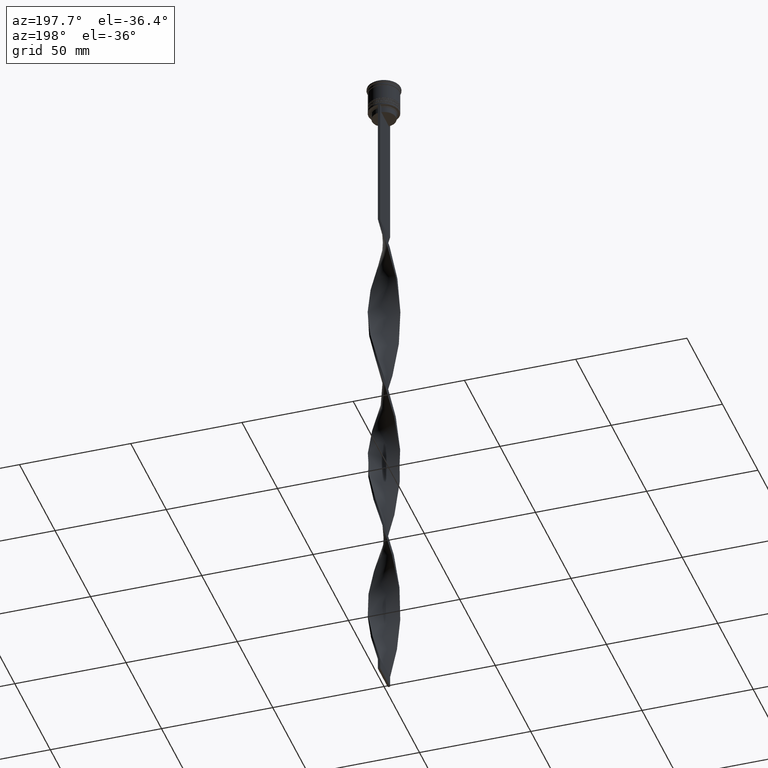
[diagram: clean part render]
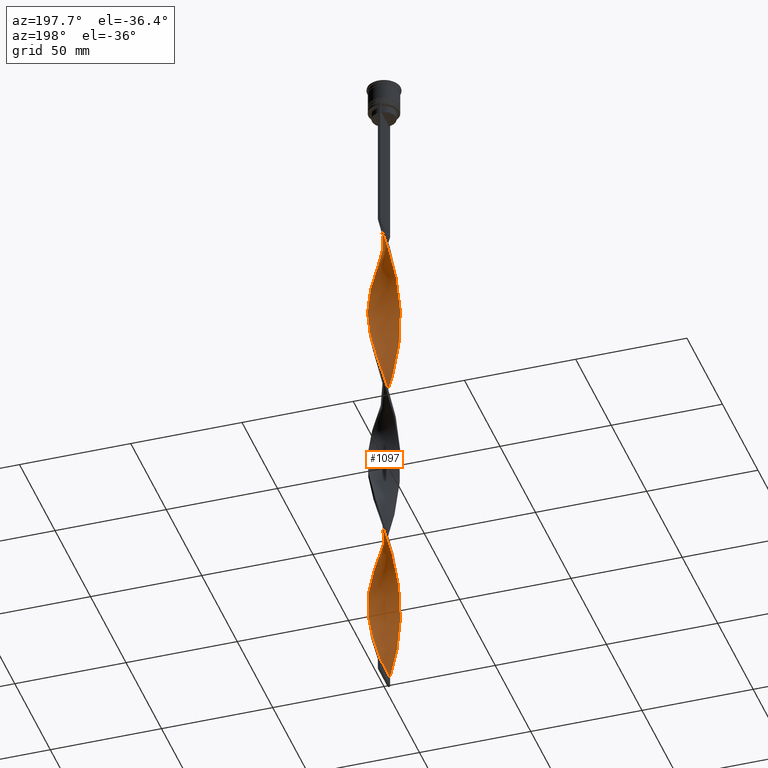
[diagram: same view with one face highlighted and labeled with its STEP entity id]
A machine part, auxiliary view. The second image highlights one B-rep face of the part: STEP entity #1097.
In plain terms, the highlighted face is a freeform B-spline surface patch.
Its self-contained STEP definition (entity closure, byte-faithful):
#17 = CARTESIAN_POINT ( 'NONE',  ( -5.724879761844407611, -4.096437986383642205, -204.1500000000000341 ) ) ;
#40 = CARTESIAN_POINT ( 'NONE',  ( -0.6011970849840476694, 6.992035616686082200, -233.4000000000000057 ) ) ;
#41 = CARTESIAN_POINT ( 'NONE',  ( 6.679087842547245302, -2.223699182758344772, -258.7500000000001137 ) ) ;
#44 = CARTESIAN_POINT ( 'NONE',  ( 1.151482222195765237, -6.944720379959854029, -157.3499999999999943 ) ) ;
#49 = CARTESIAN_POINT ( 'NONE',  ( -4.941572540085927834, -5.013572907112386901, -133.9500000000000455 ) ) ;
#58 = CARTESIAN_POINT ( 'NONE',  ( -5.957011586770866174, 3.709988268859837568, -174.9000000000000057 ) ) ;
#62 = CARTESIAN_POINT ( 'NONE',  ( -7.000000000000002665, 0.5000000000000004441, -268.4999999999999432 ) ) ;
#63 = CARTESIAN_POINT ( 'NONE',  ( 3.623436760271010026, -6.010050419448799808, -241.1999999999999886 ) ) ;
#64 = CARTESIAN_POINT ( 'NONE',  ( 1.687590702477054894, -6.811904111253552330, -159.3000000000000114 ) ) ;
#73 = CARTESIAN_POINT ( 'NONE',  ( -6.295221077053191117, -3.150435534158376960, -200.2500000000000000 ) ) ;
#76 = CARTESIAN_POINT ( 'NONE',  ( -2.126858903386042332, -6.710553156704010647, -301.6500000000000341 ) ) ;
#77 = CARTESIAN_POINT ( 'NONE',  ( -1.687590702477056226, -6.811904111253546112, -221.7000000000000171 ) ) ;
#79 = CARTESIAN_POINT ( 'NONE',  ( 3.241161289406943258, -6.248993995829452253, -165.1500000000000341 ) ) ;
#89 = LINE ( 'NONE', #2927, #737 ) ;
#93 = CARTESIAN_POINT ( 'NONE',  ( -5.724879761844406723, -4.096437986383641316, -204.1500000000000341 ) ) ;
#96 = CARTESIAN_POINT ( 'NONE',  ( 2.126858903386040112, -6.710553156704005318, -79.35000000000002274 ) ) ;
#97 = CARTESIAN_POINT ( 'NONE',  ( -2.638647218772207204, 6.502887116878599549, -159.3000000000000114 ) ) ;
#104 = CARTESIAN_POINT ( 'NONE',  ( 1.687590702477054894, -6.811904111253552330, -159.3000000000000114 ) ) ;
#114 = CARTESIAN_POINT ( 'NONE',  ( -0.4999999999999996669, 2.333333333333331261, -307.5000000000000000 ) ) ;
#118 = CARTESIAN_POINT ( 'NONE',  ( 2.732430236082643127, 6.464040919188344780, -295.8000000000000114 ) ) ;
#122 = CARTESIAN_POINT ( 'NONE',  ( -3.241161289406943702, 6.248993995829452253, -87.15000000000001990 ) ) ;
#133 = CARTESIAN_POINT ( 'NONE',  ( 5.303300858899104853, -4.596194077712557835, -93.00000000000001421 ) ) ;
#136 = CARTESIAN_POINT ( 'NONE',  ( 1.050911947772334099, 6.960649146587694069, -227.5500000000000114 ) ) ;
#138 = CARTESIAN_POINT ( 'NONE',  ( 4.596194077712559611, -5.303300858899109294, -170.9999999999999716 ) ) ;
#146 = CARTESIAN_POINT ( 'NONE',  ( 3.709988268859837568, 5.957011586770866174, -135.9000000000000341 ) ) ;
#150 = CARTESIAN_POINT ( 'NONE',  ( -0.4999999999999991673, 6.999999999999997335, -307.5000000000000000 ) ) ;
#170 = DIRECTION ( 'NONE',  ( 0.000000000000000000, 1.000000000000000000, 0.000000000000000000 ) ) ;
#175 = CARTESIAN_POINT ( 'NONE',  ( 6.502887116878599549, 2.638647218772207204, -276.3000000000000114 ) ) ;
#177 = CARTESIAN_POINT ( 'NONE',  ( -0.6011970849840476694, 6.992035616686082200, -233.4000000000000057 ) ) ;
#190 = CARTESIAN_POINT ( 'NONE',  ( 0.6011970849840476694, 6.992035616686076871, -303.5999999999999659 ) ) ;
#192 = CARTESIAN_POINT ( 'NONE',  ( 4.096437986383643981, -5.724879761844404946, -243.1500000000000057 ) ) ;
#198 = CARTESIAN_POINT ( 'NONE',  ( -4.941572540085927834, -5.013572907112386901, -289.9500000000001023 ) ) ;
#210 = CARTESIAN_POINT ( 'NONE',  ( -0.4999999999999991673, 6.999999999999997335, -307.5000000000000000 ) ) ;
#213 = CARTESIAN_POINT ( 'NONE',  ( -0.6011970849840483355, -6.992035616686076871, -225.5999999999999943 ) ) ;
#216 = CARTESIAN_POINT ( 'NONE',  ( -1.588885425579183774, 6.835601151645846585, -155.4000000000000057 ) ) ;
#219 = CARTESIAN_POINT ( 'NONE',  ( -3.150435534158378736, -6.295221077053198222, -297.7499999999999432 ) ) ;
#242 = CARTESIAN_POINT ( 'NONE',  ( 5.665029177712287201, -4.178815248312734987, -94.95000000000001705 ) ) ;
#261 = CARTESIAN_POINT ( 'NONE',  ( 7.039350853412313036, 0.05091194777233126745, -192.4500000000000171 ) ) ;
#262 = CARTESIAN_POINT ( 'NONE',  ( 4.519005263234784131, -5.369226334478393703, -89.10000000000000853 ) ) ;
#263 = CARTESIAN_POINT ( 'NONE',  ( -2.126858903386042332, -6.710553156704009758, -145.6500000000000341 ) ) ;
#279 = CARTESIAN_POINT ( 'NONE',  ( 7.039350853412313036, 0.05091194777233127439, -192.4500000000000455 ) ) ;
#281 = CARTESIAN_POINT ( 'NONE',  ( -0.5000000000000008882, -7.000000000000002665, -307.5000000000000000 ) ) ;
#284 = CARTESIAN_POINT ( 'NONE',  ( 6.679087842547250631, 2.223699182758347881, -200.2500000000000000 ) ) ;
#297 = CARTESIAN_POINT ( 'NONE',  ( -7.039350853412313036, -0.05091194777232888741, -114.4500000000000171 ) ) ;
#312 = CARTESIAN_POINT ( 'NONE',  ( 2.732430236082643127, 6.464040919188344780, -139.8000000000000114 ) ) ;
#328 = CARTESIAN_POINT ( 'NONE',  ( 6.944720379959855805, 1.151482222195761906, -196.3500000000000227 ) ) ;
#329 = CARTESIAN_POINT ( 'NONE',  ( -7.039350853412307707, 0.05091194777233333524, -188.5500000000000114 ) ) ;
#345 = CARTESIAN_POINT ( 'NONE',  ( -3.150435534158374740, 6.295221077053192893, -161.2500000000000568 ) ) ;
#347 = ORIENTED_EDGE ( 'NONE', *, *, #1294, .F. ) ;
#348 = CARTESIAN_POINT ( 'NONE',  ( -6.679087842547251519, -2.223699182758345660, -278.2500000000000000 ) ) ;
#349 = CARTESIAN_POINT ( 'NONE',  ( 1.050911947772328991, -6.960649146587689629, -231.4500000000000171 ) ) ;
#355 = CARTESIAN_POINT ( 'NONE',  ( -5.957011586770871503, -3.709988268859838900, -128.0999999999999943 ) ) ;
#372 = CARTESIAN_POINT ( 'NONE',  ( -5.303300858899108405, -4.596194077712559611, -288.0000000000000568 ) ) ;
#373 = CARTESIAN_POINT ( 'NONE',  ( -6.811904111253546112, 1.687590702477055338, -182.6999999999999886 ) ) ;
#390 = CARTESIAN_POINT ( 'NONE',  ( -6.960649146587694958, 1.050911947772329658, -266.5500000000000114 ) ) ;
#391 = CARTESIAN_POINT ( 'NONE',  ( 6.811904111253546112, -1.687590702477054450, -260.6999999999999886 ) ) ;
#394 = CARTESIAN_POINT ( 'NONE',  ( -3.623436760271013135, -6.010050419448804249, -139.8000000000000114 ) ) ;
#406 = CARTESIAN_POINT ( 'NONE',  ( 1.588885425579184663, -6.835601151645846585, -77.40000000000000568 ) ) ;
#407 = CARTESIAN_POINT ( 'NONE',  ( 5.957011586770867062, -3.709988268859836236, -252.9000000000000057 ) ) ;
#411 = CARTESIAN_POINT ( 'NONE',  ( -3.623436760271013135, -6.010050419448804249, -139.8000000000000114 ) ) ;
#416 = B_SPLINE_CURVE_WITH_KNOTS ( 'NONE', 3,
 ( #3664, #2083, #114, #150 ),
 .UNSPECIFIED., .F., .F.,
 ( 4, 4 ),
 ( 0.000000000000000000, 1.000000000000000000 ),
 .UNSPECIFIED. ) ;
#425 = CARTESIAN_POINT ( 'NONE',  ( -3.709988268859838456, -5.957011586770866174, -213.9000000000000057 ) ) ;
#428 = CARTESIAN_POINT ( 'NONE',  ( 2.638647218772207648, -6.502887116878598661, -81.30000000000001137 ) ) ;
#432 = CARTESIAN_POINT ( 'NONE',  ( 6.248993995829454029, 3.241161289406940593, -204.1500000000000341 ) ) ;
#438 = CARTESIAN_POINT ( 'NONE',  ( -0.5000000000000008882, -7.000000000000002665, -151.5000000000000284 ) ) ;
#453 = CARTESIAN_POINT ( 'NONE',  ( 3.241161289406943258, -6.248993995829452253, -165.1500000000000341 ) ) ;
#466 = CARTESIAN_POINT ( 'NONE',  ( 6.992035616686076871, -0.6011970849840472253, -108.6000000000000085 ) ) ;
#469 = CARTESIAN_POINT ( 'NONE',  ( 3.623436760271014023, 6.010050419448804249, -217.7999999999999829 ) ) ;
#483 = CARTESIAN_POINT ( 'NONE',  ( 4.519005263234784131, -5.369226334478393703, -89.10000000000000853 ) ) ;
#484 = CARTESIAN_POINT ( 'NONE',  ( 0.05091194777232986579, 7.039350853412307707, -305.5500000000000114 ) ) ;
#495 = CARTESIAN_POINT ( 'NONE',  ( 5.013572907112384236, 4.941572540085925169, -130.0499999999999829 ) ) ;
#499 = EDGE_CURVE ( 'NONE', #3656, #3443, #89, .T. ) ;
#503 = CARTESIAN_POINT ( 'NONE',  ( 6.248993995829446924, -3.241161289406941926, -254.8500000000000227 ) ) ;
#525 = CARTESIAN_POINT ( 'NONE',  ( -6.248993995829452253, -3.241161289406943702, -282.1500000000000909 ) ) ;
#540 = CARTESIAN_POINT ( 'NONE',  ( 6.710553156704010647, -2.126858903386039668, -184.6500000000000057 ) ) ;
#544 = CARTESIAN_POINT ( 'NONE',  ( 3.623436760271010026, -6.010050419448799808, -85.20000000000001705 ) ) ;
#546 = CARTESIAN_POINT ( 'NONE',  ( -2.638647218772210312, -6.502887116878603990, -299.6999999999999886 ) ) ;
#555 = CARTESIAN_POINT ( 'NONE',  ( -1.151482222195766125, 6.944720379959854029, -79.35000000000002274 ) ) ;
#565 = CARTESIAN_POINT ( 'NONE',  ( 6.710553156704006206, 2.126858903386039668, -274.3499999999999659 ) ) ;
#568 = CARTESIAN_POINT ( 'NONE',  ( 6.502887116878603990, -2.638647218772210756, -182.6999999999999886 ) ) ;
#591 = CARTESIAN_POINT ( 'NONE',  ( -1.588885425579185995, -6.835601151645850138, -147.6000000000000227 ) ) ;
#609 = CARTESIAN_POINT ( 'NONE',  ( 6.710553156704011535, -2.126858903386039668, -184.6500000000000057 ) ) ;
#610 = CARTESIAN_POINT ( 'NONE',  ( 6.679087842547245302, -2.223699182758344772, -102.7500000000000284 ) ) ;
#619 = CARTESIAN_POINT ( 'NONE',  ( -6.811904111253552330, -1.687590702477055338, -120.2999999999999972 ) ) ;
#635 = CARTESIAN_POINT ( 'NONE',  ( 3.709988268859837568, 5.957011586770866174, -135.9000000000000341 ) ) ;
#641 = CARTESIAN_POINT ( 'NONE',  ( -6.010050419448804249, 3.623436760271012691, -100.7999999999999972 ) ) ;
#653 = CARTESIAN_POINT ( 'NONE',  ( 3.623436760271014023, 6.010050419448804249, -217.7999999999999829 ) ) ;
#654 = CARTESIAN_POINT ( 'NONE',  ( -5.665029177712285424, 4.178815248312737651, -172.9499999999999886 ) ) ;
#661 = CARTESIAN_POINT ( 'NONE',  ( -6.295221077053197334, 3.150435534158377848, -102.7500000000000284 ) ) ;
#669 = CARTESIAN_POINT ( 'NONE',  ( -5.665029177712290753, -4.178815248312736763, -286.0500000000000114 ) ) ;
#670 = CARTESIAN_POINT ( 'NONE',  ( -6.679087842547244414, 2.223699182758348325, -180.7500000000000568 ) ) ;
#689 = CARTESIAN_POINT ( 'NONE',  ( -6.944720379959849588, 1.151482222195763239, -184.6500000000000057 ) ) ;
#692 = CARTESIAN_POINT ( 'NONE',  ( -6.710553156704010647, 2.126858903386041888, -262.6499999999999773 ) ) ;
#693 = CARTESIAN_POINT ( 'NONE',  ( 5.303300858899104853, -4.596194077712557835, -249.0000000000000000 ) ) ;
#708 = CARTESIAN_POINT ( 'NONE',  ( -4.941572540085928722, -5.013572907112387789, -289.9500000000001023 ) ) ;
#709 = CARTESIAN_POINT ( 'NONE',  ( 6.295221077053192893, 3.150435534158375628, -278.2500000000000000 ) ) ;
#724 = CARTESIAN_POINT ( 'NONE',  ( -4.596194077712558723, -5.303300858899103964, -210.0000000000000000 ) ) ;
#727 = CARTESIAN_POINT ( 'NONE',  ( -4.178815248312736763, 5.665029177712290753, -247.0500000000000114 ) ) ;
#732 = CARTESIAN_POINT ( 'NONE',  ( -4.096437986383648422, -5.724879761844408499, -137.8499999999999943 ) ) ;
#737 = VECTOR ( 'NONE', #170, 1000.000000000000000 ) ;
#747 = CARTESIAN_POINT ( 'NONE',  ( 6.811904111253546112, -1.687590702477054450, -104.7000000000000171 ) ) ;
#748 = CARTESIAN_POINT ( 'NONE',  ( -4.596194077712561388, 5.303300858899108405, -93.00000000000001421 ) ) ;
#758 = CARTESIAN_POINT ( 'NONE',  ( -6.811904111253552330, -1.687590702477055338, -120.2999999999999972 ) ) ;
#775 = CARTESIAN_POINT ( 'NONE',  ( 4.596194077712559611, -5.303300858899109294, -170.9999999999999716 ) ) ;
#778 = CARTESIAN_POINT ( 'NONE',  ( 4.178815248312736763, -5.665029177712291641, -169.0499999999999829 ) ) ;
#789 = CARTESIAN_POINT ( 'NONE',  ( -6.502887116878603990, 2.638647218772209868, -104.7000000000000171 ) ) ;
#794 = CARTESIAN_POINT ( 'NONE',  ( -1.687590702477056226, -6.811904111253546112, -221.7000000000000171 ) ) ;
#811 = CARTESIAN_POINT ( 'NONE',  ( 3.150435534158375628, -6.295221077053192005, -83.25000000000000000 ) ) ;
#813 = CARTESIAN_POINT ( 'NONE',  ( 4.519005263234784131, -5.369226334478393703, -245.1000000000000227 ) ) ;
#815 = CARTESIAN_POINT ( 'NONE',  ( 5.303300858899109294, 4.596194077712558723, -210.0000000000000000 ) ) ;
#820 = CARTESIAN_POINT ( 'NONE',  ( -6.010050419448804249, 3.623436760271012691, -256.8000000000000114 ) ) ;
#836 = CARTESIAN_POINT ( 'NONE',  ( -5.369226334478397256, 4.519005263234787684, -96.90000000000001990 ) ) ;
#838 = CARTESIAN_POINT ( 'NONE',  ( 5.724879761844404946, 4.096437986383643981, -282.1500000000000909 ) ) ;
#846 = CARTESIAN_POINT ( 'NONE',  ( -6.992035616686082200, -0.6011970849840472253, -116.4000000000000057 ) ) ;
#860 = CARTESIAN_POINT ( 'NONE',  ( 2.126858903386040112, -6.710553156704005318, -79.35000000000002274 ) ) ;
#864 = CARTESIAN_POINT ( 'NONE',  ( 0.5000000000000000000, 7.000000000000002665, -73.50000000000001421 ) ) ;
#867 = CARTESIAN_POINT ( 'NONE',  ( -7.000000000000002665, 0.5000000000000004441, -112.5000000000000142 ) ) ;
#877 = CARTESIAN_POINT ( 'NONE',  ( 5.957011586770867062, -3.709988268859836236, -252.9000000000000057 ) ) ;
#882 = EDGE_LOOP ( 'NONE', ( #4044, #2848, #347, #3584 ) ) ;
#883 = CARTESIAN_POINT ( 'NONE',  ( -1.050911947772328103, 6.960649146587689629, -153.4500000000000171 ) ) ;
#896 = CARTESIAN_POINT ( 'NONE',  ( -4.178815248312736763, 5.665029177712290753, -91.05000000000001137 ) ) ;
#911 = CARTESIAN_POINT ( 'NONE',  ( 7.000000000000002665, -0.5000000000000013323, -190.5000000000000000 ) ) ;
#918 = CARTESIAN_POINT ( 'NONE',  ( -6.960649146587694069, 1.050911947772329658, -110.5500000000000114 ) ) ;
#928 = VERTEX_POINT ( 'NONE', #2702 ) ;
#931 = CARTESIAN_POINT ( 'NONE',  ( 6.710553156704006206, 2.126858903386039668, -118.3500000000000085 ) ) ;
#974 = CARTESIAN_POINT ( 'NONE',  ( -6.811904111253552330, -1.687590702477055338, -276.3000000000000114 ) ) ;
#975 = CARTESIAN_POINT ( 'NONE',  ( -2.223699182758348769, -6.679087842547244414, -219.7500000000000284 ) ) ;
#988 = CARTESIAN_POINT ( 'NONE',  ( -4.096437986383643093, 5.724879761844404946, -165.1500000000000341 ) ) ;
#991 = CARTESIAN_POINT ( 'NONE',  ( 2.126858903386039668, 6.710553156704011535, -223.6500000000000341 ) ) ;
#992 = CARTESIAN_POINT ( 'NONE',  ( 0.5000000000000000000, -6.999999999999997335, -229.5000000000000000 ) ) ;
#998 = CARTESIAN_POINT ( 'NONE',  ( -7.039350853412313036, -0.05091194777232888741, -114.4500000000000313 ) ) ;
#1009 = CARTESIAN_POINT ( 'NONE',  ( -7.039350853412313036, -0.05091194777232888741, -270.4500000000000455 ) ) ;
#1010 = CARTESIAN_POINT ( 'NONE',  ( -6.464040919188344780, 2.732430236082643571, -178.8000000000000114 ) ) ;
#1019 = CARTESIAN_POINT ( 'NONE',  ( -5.369226334478397256, 4.519005263234787684, -96.90000000000001990 ) ) ;
#1033 = CARTESIAN_POINT ( 'NONE',  ( -4.519005263234788572, -5.369226334478396367, -291.8999999999999773 ) ) ;
#1034 = CARTESIAN_POINT ( 'NONE',  ( 6.835601151645846585, 1.588885425579184218, -272.3999999999999773 ) ) ;
#1037 = CARTESIAN_POINT ( 'NONE',  ( -6.464040919188350998, -2.732430236082644459, -124.2000000000000028 ) ) ;
#1048 = CARTESIAN_POINT ( 'NONE',  ( -5.013572907112382460, -4.941572540085926057, -208.0500000000000398 ) ) ;
#1050 = CARTESIAN_POINT ( 'NONE',  ( -2.638647218772210312, -6.502887116878603990, -299.6999999999999886 ) ) ;
#1051 = CARTESIAN_POINT ( 'NONE',  ( -6.295221077053192005, -3.150435534158377404, -200.2500000000000000 ) ) ;
#1053 = CARTESIAN_POINT ( 'NONE',  ( -3.709988268859839788, 5.957011586770871503, -245.1000000000000227 ) ) ;
#1054 = CARTESIAN_POINT ( 'NONE',  ( 5.369226334478396367, -4.519005263234788572, -174.9000000000000057 ) ) ;
#1058 = CARTESIAN_POINT ( 'NONE',  ( -3.150435534158378292, -6.295221077053197334, -141.7499999999999716 ) ) ;
#1067 = CARTESIAN_POINT ( 'NONE',  ( -0.4999999999999991673, 6.999999999999997335, -151.5000000000000284 ) ) ;
#1096 = CARTESIAN_POINT ( 'NONE',  ( 0.5000000000000000000, 7.000000000000002665, -229.5000000000000000 ) ) ;
#1097 = ADVANCED_FACE ( 'NONE', ( #1494 ), #1186, .T. ) ;
#1098 = CARTESIAN_POINT ( 'NONE',  ( 5.724879761844411163, -4.096437986383645757, -176.8500000000000227 ) ) ;
#1112 = CARTESIAN_POINT ( 'NONE',  ( -6.010050419448804249, 3.623436760271012691, -100.7999999999999972 ) ) ;
#1123 = CARTESIAN_POINT ( 'NONE',  ( 2.732430236082643127, 6.464040919188344780, -139.8000000000000114 ) ) ;
#1129 = CARTESIAN_POINT ( 'NONE',  ( 6.992035616686076871, -0.6011970849840472253, -264.6000000000000227 ) ) ;
#1142 = CARTESIAN_POINT ( 'NONE',  ( 1.687590702477054894, 6.811904111253546112, -143.6999999999999886 ) ) ;
#1150 = CARTESIAN_POINT ( 'NONE',  ( 1.151482222195765681, 6.944720379959848700, -301.6500000000000341 ) ) ;
#1160 = CARTESIAN_POINT ( 'NONE',  ( -4.178815248312736763, 5.665029177712290753, -91.05000000000001137 ) ) ;
#1179 = CARTESIAN_POINT ( 'NONE',  ( 0.5000000000000000000, -6.999999999999997335, -73.50000000000001421 ) ) ;
#1180 = CARTESIAN_POINT ( 'NONE',  ( -4.519005263234788572, -5.369226334478396367, -291.8999999999999773 ) ) ;
#1186 =( BOUNDED_SURFACE ( )  B_SPLINE_SURFACE ( 1, 2, ( 
 ( #4028, #2122, #3394, #555, #4052, #1233, #3758, #1208, #2462, #896, #3420, #2585, #1019, #1885, #641, #661, #1597, #1905, #3182, #2864, #2568, #998, #2249, #2920, #758, #3879, #1037, #2289, #2332, #3063, #1484, #3563, #1712, #732, #411, #1058, #3273, #1675, #2944, #3916, #438, #2965, #3600, #2019, #104, #3292, #1400, #453, #2984, #778, #138, #2667, #2357, #2037, #3362, #1507, #1874, #609, #1834, #4066, #911, #261, #4045, #328, #1246, #284, #3696, #3381, #3412, #1525, #2796, #1689, #2540, #3248, #653, #1304, #3893, #991, #2621, #1609, #3193, #1666, #40, #2880, #3501, #2224, #2562, #1360, #3811, #727, #2957, #3539, #3834, #1936, #3852, #1994, #2242, #692, #1917, #390, #62, #1009, #3235, #2935, #974, #348, #1651, #2284, #3517, #669, #372, #708, #1033, #3213, #2914, #1635, #1050, #76, #2598, #3870, #2303 ),
 ( #3558, #1975, #406, #96, #428, #811, #2347, #1723, #483, #2032, #133, #2641, #3022, #2998, #2322, #3667, #747, #1395, #466, #2658, #3931, #2067, #1417, #3969, #3339, #1389, #2058, #3015, #2026, #495, #2991, #1432, #146, #2676, #1123, #3982, #1142, #2395, #1987, #2635, #1067, #2315, #3585, #1914, #1973, #345, #3831, #988, #1319, #2239, #1932, #1631, #58, #3244, #2594, #2578, #3536, #689, #1956, #3891, #3232, #1647, #2281, #2911, #1664, #73, #2931, #93, #2619, #1048, #724, #1992, #425, #3492, #1612, #1637, #794, #3673, #213, #3692, #1709, #2771, #4111, #4042, #3670, #3378, #3355, #192, #813, #2767, #4060, #1805, #877, #503, #2069, #4039, #1763, #1458, #1129, #3971, #2720, #3712, #1438, #565, #175, #4013, #3989, #838, #3059, #2700, #1480, #2133, #1783, #3404, #1195, #2446, #1828, #1150, #2406, #2087, #210 ) ),
 .UNSPECIFIED., .F., .F., .F. ) 
 B_SPLINE_SURFACE_WITH_KNOTS ( ( 2, 2 ),
 ( 3, 2, 2, 2, 2, 2, 2, 2, 2, 2, 2, 2, 2, 2, 2, 2, 2, 2, 2, 2, 2, 2, 2, 2, 2, 2, 2, 2, 2, 2, 2, 2, 2, 2, 2, 2, 2, 2, 2, 2, 2, 2, 2, 2, 2, 2, 2, 2, 2, 2, 2, 2, 2, 2, 2, 2, 2, 2, 2, 2, 3 ),
 ( 0.000000000000000000, 1.000000000000000000 ),
 ( 0.000000000000000000, 0.01250000000000000069, 0.02500000000000000139, 0.03749999999999999861, 0.05000000000000000278, 0.06250000000000000000, 0.07499999999999999722, 0.08749999999999999445, 0.1000000000000000056, 0.1125000000000000028, 0.1250000000000000000, 0.1375000000000000111, 0.1499999999999999944, 0.1625000000000000056, 0.1749999999999999889, 0.1875000000000000000, 0.2000000000000000111, 0.2124999999999999944, 0.2250000000000000056, 0.2374999999999999889, 0.2500000000000000000, 0.2625000000000000111, 0.2750000000000000222, 0.2874999999999999778, 0.2999999999999999889, 0.3125000000000000000, 0.3250000000000000111, 0.3375000000000000222, 0.3499999999999999778, 0.3624999999999999889, 0.3750000000000000000, 0.3875000000000000111, 0.4000000000000000222, 0.4124999999999999778, 0.4249999999999999889, 0.4375000000000000000, 0.4500000000000000111, 0.4625000000000000222, 0.4749999999999999778, 0.4874999999999999889, 0.5000000000000000000, 0.5124999999999999556, 0.5250000000000000222, 0.5374999999999999778, 0.5500000000000000444, 0.5625000000000000000, 0.5749999999999999556, 0.5875000000000000222, 0.5999999999999999778, 0.6125000000000000444, 0.6250000000000000000, 0.6374999999999999556, 0.6500000000000000222, 0.6624999999999999778, 0.6750000000000000444, 0.6875000000000000000, 0.6999999999999999556, 0.7125000000000000222, 0.7249999999999999778, 0.7375000000000000444, 0.7500000000000000000 ),
 .UNSPECIFIED. ) 
 GEOMETRIC_REPRESENTATION_ITEM ( )  RATIONAL_B_SPLINE_SURFACE ( (
 ( 1.000000000000000000, 0.9969173337331279638, 1.000000000000000000, 0.9969173337331279638, 1.000000000000000000, 0.9969173337331279638, 1.000000000000000000, 0.9969173337331279638, 1.000000000000000000, 0.9969173337331279638, 1.000000000000000000, 0.9969173337331279638, 1.000000000000000000, 0.9969173337331279638, 1.000000000000000000, 0.9969173337331279638, 1.000000000000000000, 0.9969173337331279638, 1.000000000000000000, 0.9969173337331279638, 1.000000000000000000, 0.9969173337331279638, 1.000000000000000000, 0.9969173337331279638, 1.000000000000000000, 0.9969173337331279638, 1.000000000000000000, 0.9969173337331279638, 1.000000000000000000, 0.9969173337331279638, 1.000000000000000000, 0.9969173337331279638, 1.000000000000000000, 0.9969173337331279638, 1.000000000000000000, 0.9969173337331279638, 1.000000000000000000, 0.9969173337331279638, 1.000000000000000000, 0.9969173337331279638, 1.000000000000000000, 0.9969173337331279638, 1.000000000000000000, 0.9969173337331279638, 1.000000000000000000, 0.9969173337331279638, 1.000000000000000000, 0.9969173337331279638, 1.000000000000000000, 0.9969173337331279638, 1.000000000000000000, 0.9969173337331279638, 1.000000000000000000, 0.9969173337331279638, 1.000000000000000000, 0.9969173337331279638, 1.000000000000000000, 0.9969173337331279638, 1.000000000000000000, 0.9969173337331279638, 1.000000000000000000, 0.9969173337331279638, 1.000000000000000000, 0.9969173337331279638, 1.000000000000000000, 0.9969173337331279638, 1.000000000000000000, 0.9969173337331279638, 1.000000000000000000, 0.9969173337331279638, 1.000000000000000000, 0.9969173337331279638, 1.000000000000000000, 0.9969173337331279638, 1.000000000000000000, 0.9969173337331279638, 1.000000000000000000, 0.9969173337331279638, 1.000000000000000000, 0.9969173337331279638, 1.000000000000000000, 0.9969173337331279638, 1.000000000000000000, 0.9969173337331279638, 1.000000000000000000, 0.9969173337331279638, 1.000000000000000000, 0.9969173337331279638, 1.000000000000000000, 0.9969173337331279638, 1.000000000000000000, 0.9969173337331279638, 1.000000000000000000, 0.9969173337331279638, 1.000000000000000000, 0.9969173337331279638, 1.000000000000000000, 0.9969173337331279638, 1.000000000000000000, 0.9969173337331279638, 1.000000000000000000, 0.9969173337331279638, 1.000000000000000000, 0.9969173337331279638, 1.000000000000000000, 0.9969173337331279638, 1.000000000000000000, 0.9969173337331279638, 1.000000000000000000, 0.9969173337331279638, 1.000000000000000000, 0.9969173337331279638, 1.000000000000000000, 0.9969173337331279638, 1.000000000000000000, 0.9969173337331279638, 1.000000000000000000, 0.9969173337331279638, 1.000000000000000000, 0.9969173337331279638, 1.000000000000000000),
 ( 1.000000000000000000, 0.9969173337331279638, 1.000000000000000000, 0.9969173337331279638, 1.000000000000000000, 0.9969173337331279638, 1.000000000000000000, 0.9969173337331279638, 1.000000000000000000, 0.9969173337331279638, 1.000000000000000000, 0.9969173337331279638, 1.000000000000000000, 0.9969173337331279638, 1.000000000000000000, 0.9969173337331279638, 1.000000000000000000, 0.9969173337331279638, 1.000000000000000000, 0.9969173337331279638, 1.000000000000000000, 0.9969173337331279638, 1.000000000000000000, 0.9969173337331279638, 1.000000000000000000, 0.9969173337331279638, 1.000000000000000000, 0.9969173337331279638, 1.000000000000000000, 0.9969173337331279638, 1.000000000000000000, 0.9969173337331279638, 1.000000000000000000, 0.9969173337331279638, 1.000000000000000000, 0.9969173337331279638, 1.000000000000000000, 0.9969173337331279638, 1.000000000000000000, 0.9969173337331279638, 1.000000000000000000, 0.9969173337331279638, 1.000000000000000000, 0.9969173337331279638, 1.000000000000000000, 0.9969173337331279638, 1.000000000000000000, 0.9969173337331279638, 1.000000000000000000, 0.9969173337331279638, 1.000000000000000000, 0.9969173337331279638, 1.000000000000000000, 0.9969173337331279638, 1.000000000000000000, 0.9969173337331279638, 1.000000000000000000, 0.9969173337331279638, 1.000000000000000000, 0.9969173337331279638, 1.000000000000000000, 0.9969173337331279638, 1.000000000000000000, 0.9969173337331279638, 1.000000000000000000, 0.9969173337331279638, 1.000000000000000000, 0.9969173337331279638, 1.000000000000000000, 0.9969173337331279638, 1.000000000000000000, 0.9969173337331279638, 1.000000000000000000, 0.9969173337331279638, 1.000000000000000000, 0.9969173337331279638, 1.000000000000000000, 0.9969173337331279638, 1.000000000000000000, 0.9969173337331279638, 1.000000000000000000, 0.9969173337331279638, 1.000000000000000000, 0.9969173337331279638, 1.000000000000000000, 0.9969173337331279638, 1.000000000000000000, 0.9969173337331279638, 1.000000000000000000, 0.9969173337331279638, 1.000000000000000000, 0.9969173337331279638, 1.000000000000000000, 0.9969173337331279638, 1.000000000000000000, 0.9969173337331279638, 1.000000000000000000, 0.9969173337331279638, 1.000000000000000000, 0.9969173337331279638, 1.000000000000000000, 0.9969173337331279638, 1.000000000000000000, 0.9969173337331279638, 1.000000000000000000, 0.9969173337331279638, 1.000000000000000000, 0.9969173337331279638, 1.000000000000000000, 0.9969173337331279638, 1.000000000000000000, 0.9969173337331279638, 1.000000000000000000, 0.9969173337331279638, 1.000000000000000000, 0.9969173337331279638, 1.000000000000000000, 0.9969173337331279638, 1.000000000000000000, 0.9969173337331279638, 1.000000000000000000) ) ) 
 REPRESENTATION_ITEM ( '' )  SURFACE ( )  );
#1191 = EDGE_CURVE ( 'NONE', #3443, #1377, #1341, .T. ) ;
#1195 = CARTESIAN_POINT ( 'NONE',  ( 2.732430236082643127, 6.464040919188344780, -295.8000000000000114 ) ) ;
#1202 = CARTESIAN_POINT ( 'NONE',  ( 5.369226334478393703, 4.519005263234783243, -128.0999999999999943 ) ) ;
#1208 = CARTESIAN_POINT ( 'NONE',  ( -3.241161289406943702, 6.248993995829452253, -87.15000000000001990 ) ) ;
#1223 = CARTESIAN_POINT ( 'NONE',  ( 1.588885425579184663, -6.835601151645846585, -77.40000000000000568 ) ) ;
#1233 = CARTESIAN_POINT ( 'NONE',  ( -2.223699182758346105, 6.679087842547251519, -83.25000000000000000 ) ) ;
#1246 = CARTESIAN_POINT ( 'NONE',  ( 6.811904111253552330, 1.687590702477054450, -198.3000000000000114 ) ) ;
#1263 = CARTESIAN_POINT ( 'NONE',  ( 2.223699182758344772, 6.679087842547245302, -141.7500000000000000 ) ) ;
#1280 = CARTESIAN_POINT ( 'NONE',  ( -6.248993995829448700, 3.241161289406939705, -176.8500000000000227 ) ) ;
#1294 = EDGE_CURVE ( 'NONE', #1377, #928, #416, .T. ) ;
#1304 = CARTESIAN_POINT ( 'NONE',  ( 3.150435534158381845, 6.295221077053195557, -219.7500000000000284 ) ) ;
#1305 = CARTESIAN_POINT ( 'NONE',  ( 5.665029177712287201, -4.178815248312734987, -250.9500000000000171 ) ) ;
#1310 = CARTESIAN_POINT ( 'NONE',  ( -4.519005263234788572, -5.369226334478396367, -135.9000000000000341 ) ) ;
#1319 = CARTESIAN_POINT ( 'NONE',  ( -4.519005263234783243, 5.369226334478393703, -167.0999999999999943 ) ) ;
#1322 = CARTESIAN_POINT ( 'NONE',  ( -5.957011586770866174, 3.709988268859837568, -174.9000000000000057 ) ) ;
#1331 = CARTESIAN_POINT ( 'NONE',  ( -5.369226334478397256, 4.519005263234787684, -252.9000000000000057 ) ) ;
#1339 = CARTESIAN_POINT ( 'NONE',  ( 7.039350853412307707, -0.05091194777232932456, -266.5500000000000114 ) ) ;
#1341 =( BOUNDED_CURVE ( )  B_SPLINE_CURVE ( 2, ( #3918, #2334, #2021, #3295, #1401, #2607, #2966, #122, #3652, #1160, #748, #2999, #836, #1418, #1112, #2367, #789, #2865, #2490, #918, #867, #297, #846, #4102, #619, #1884, #3162, #3878, #355, #1345, #3546, #49, #1310, #2248, #394, #2567, #3841, #263, #591, #4022, #3437, #2434, #3698, #44, #64, #2228, #1960, #79, #2961, #3598, #775, #1475, #1054, #1098, #2960, #4015, #568, #540, #2770, #3125, #1830, #279, #3431, #1542, #4090, #2183, #1765, #432, #1693, #2370, #815, #3629, #3321, #3595, #469, #3896, #1727, #1708, #2981, #136, #1096, #3026, #177, #2660, #3934, #1440, #3002, #3645, #1053, #2072, #2938, #1364, #1331, #2948, #820, #3750, #2411, #1836, #3089, #3723, #1550, #2096, #2165, #3344, #2728, #3365, #1527, #525, #4021, #2433, #4071, #198, #1180, #3974, #3385, #219, #546, #1509, #2143, #2706, #3650 ),
 .UNSPECIFIED., .F., .T. ) 
 B_SPLINE_CURVE_WITH_KNOTS ( ( 3, 2, 2, 2, 2, 2, 2, 2, 2, 2, 2, 2, 2, 2, 2, 2, 2, 2, 2, 2, 2, 2, 2, 2, 2, 2, 2, 2, 2, 2, 2, 2, 2, 2, 2, 2, 2, 2, 2, 2, 2, 2, 2, 2, 2, 2, 2, 2, 2, 2, 2, 2, 2, 2, 2, 2, 2, 2, 2, 2, 3 ),
 ( 0.000000000000000000, 0.01250000000000000243, 0.02500000000000000486, 0.03749999999999999861, 0.05000000000000000971, 0.06250000000000000000, 0.07499999999999999722, 0.08749999999999998057, 0.1000000000000000194, 0.1125000000000000028, 0.1250000000000000000, 0.1375000000000000111, 0.1499999999999999944, 0.1625000000000000056, 0.1749999999999999611, 0.1875000000000000000, 0.2000000000000000389, 0.2124999999999999944, 0.2250000000000000056, 0.2374999999999999611, 0.2500000000000000000, 0.2625000000000000111, 0.2750000000000000222, 0.2874999999999999778, 0.2999999999999999889, 0.3125000000000000000, 0.3250000000000000111, 0.3375000000000000777, 0.3499999999999999223, 0.3624999999999999889, 0.3750000000000000000, 0.3875000000000000111, 0.4000000000000000777, 0.4124999999999999223, 0.4249999999999999889, 0.4375000000000000000, 0.4500000000000000111, 0.4625000000000000777, 0.4749999999999999223, 0.4874999999999999889, 0.5000000000000000000, 0.5124999999999999556, 0.5250000000000000222, 0.5374999999999999778, 0.5500000000000000444, 0.5625000000000000000, 0.5749999999999999556, 0.5875000000000000222, 0.5999999999999999778, 0.6125000000000000444, 0.6250000000000000000, 0.6374999999999999556, 0.6500000000000000222, 0.6624999999999999778, 0.6750000000000001554, 0.6875000000000000000, 0.6999999999999998446, 0.7125000000000000222, 0.7249999999999999778, 0.7375000000000001554, 0.7500000000000000000 ),
 .UNSPECIFIED. ) 
 CURVE ( )  GEOMETRIC_REPRESENTATION_ITEM ( )  RATIONAL_B_SPLINE_CURVE ( ( 1.000000000000000000, 0.9969173337331279638, 1.000000000000000000, 0.9969173337331279638, 1.000000000000000000, 0.9969173337331279638, 1.000000000000000000, 0.9969173337331279638, 1.000000000000000000, 0.9969173337331279638, 1.000000000000000000, 0.9969173337331279638, 1.000000000000000000, 0.9969173337331279638, 1.000000000000000000, 0.9969173337331279638, 1.000000000000000000, 0.9969173337331279638, 1.000000000000000000, 0.9969173337331279638, 1.000000000000000000, 0.9969173337331279638, 1.000000000000000000, 0.9969173337331279638, 1.000000000000000000, 0.9969173337331279638, 1.000000000000000000, 0.9969173337331279638, 1.000000000000000000, 0.9969173337331279638, 1.000000000000000000, 0.9969173337331279638, 1.000000000000000000, 0.9969173337331279638, 1.000000000000000000, 0.9969173337331279638, 1.000000000000000000, 0.9969173337331279638, 1.000000000000000000, 0.9969173337331279638, 1.000000000000000000, 0.9969173337331279638, 1.000000000000000000, 0.9969173337331279638, 1.000000000000000000, 0.9969173337331279638, 1.000000000000000000, 0.9969173337331279638, 1.000000000000000000, 0.9969173337331279638, 1.000000000000000000, 0.9969173337331279638, 1.000000000000000000, 0.9969173337331279638, 1.000000000000000000, 0.9969173337331279638, 1.000000000000000000, 0.9969173337331279638, 1.000000000000000000, 0.9969173337331279638, 1.000000000000000000, 0.9969173337331279638, 1.000000000000000000, 0.9969173337331279638, 1.000000000000000000, 0.9969173337331279638, 1.000000000000000000, 0.9969173337331279638, 1.000000000000000000, 0.9969173337331279638, 1.000000000000000000, 0.9969173337331279638, 1.000000000000000000, 0.9969173337331279638, 1.000000000000000000, 0.9969173337331279638, 1.000000000000000000, 0.9969173337331279638, 1.000000000000000000, 0.9969173337331279638, 1.000000000000000000, 0.9969173337331279638, 1.000000000000000000, 0.9969173337331279638, 1.000000000000000000, 0.9969173337331279638, 1.000000000000000000, 0.9969173337331279638, 1.000000000000000000, 0.9969173337331279638, 1.000000000000000000, 0.9969173337331279638, 1.000000000000000000, 0.9969173337331279638, 1.000000000000000000, 0.9969173337331279638, 1.000000000000000000, 0.9969173337331279638, 1.000000000000000000, 0.9969173337331279638, 1.000000000000000000, 0.9969173337331279638, 1.000000000000000000, 0.9969173337331279638, 1.000000000000000000, 0.9969173337331279638, 1.000000000000000000, 0.9969173337331279638, 1.000000000000000000, 0.9969173337331279638, 1.000000000000000000, 0.9969173337331279638, 1.000000000000000000, 0.9969173337331279638, 1.000000000000000000, 0.9969173337331279638, 1.000000000000000000, 0.9969173337331279638, 1.000000000000000000, 0.9969173337331279638, 1.000000000000000000 ) ) 
 REPRESENTATION_ITEM ( '' )  );
#1345 = CARTESIAN_POINT ( 'NONE',  ( -5.665029177712290753, -4.178815248312736763, -130.0500000000000114 ) ) ;
#1360 = CARTESIAN_POINT ( 'NONE',  ( -3.241161289406943702, 6.248993995829452253, -243.1500000000000057 ) ) ;
#1361 = CARTESIAN_POINT ( 'NONE',  ( -5.303300858899104853, 4.596194077712558723, -170.9999999999999716 ) ) ;
#1364 = CARTESIAN_POINT ( 'NONE',  ( -5.013572907112386901, 4.941572540085927834, -250.9500000000000171 ) ) ;
#1377 = VERTEX_POINT ( 'NONE', #281 ) ;
#1389 = CARTESIAN_POINT ( 'NONE',  ( 6.295221077053192005, 3.150435534158375184, -122.2500000000000142 ) ) ;
#1395 = CARTESIAN_POINT ( 'NONE',  ( 6.944720379959848700, -1.151482222195765681, -106.6500000000000199 ) ) ;
#1400 = CARTESIAN_POINT ( 'NONE',  ( 2.732430236082644015, -6.464040919188350998, -163.2000000000000171 ) ) ;
#1401 = CARTESIAN_POINT ( 'NONE',  ( -1.687590702477055782, 6.811904111253551442, -81.30000000000001137 ) ) ;
#1417 = CARTESIAN_POINT ( 'NONE',  ( 6.835601151645846585, 1.588885425579184218, -116.4000000000000057 ) ) ;
#1418 = CARTESIAN_POINT ( 'NONE',  ( -5.724879761844409387, 4.096437986383648422, -98.85000000000002274 ) ) ;
#1432 = CARTESIAN_POINT ( 'NONE',  ( 4.178815248312734987, 5.665029177712287201, -133.9500000000000455 ) ) ;
#1438 = CARTESIAN_POINT ( 'NONE',  ( 6.835601151645846585, 1.588885425579184218, -272.3999999999999773 ) ) ;
#1440 = CARTESIAN_POINT ( 'NONE',  ( -2.223699182758346105, 6.679087842547250631, -239.2500000000000284 ) ) ;
#1458 = CARTESIAN_POINT ( 'NONE',  ( 6.944720379959848700, -1.151482222195765681, -262.6499999999999773 ) ) ;
#1475 = CARTESIAN_POINT ( 'NONE',  ( 5.013572907112384236, -4.941572540085930498, -172.9499999999999886 ) ) ;
#1480 = CARTESIAN_POINT ( 'NONE',  ( 4.596194077712557835, 5.303300858899104853, -288.0000000000000568 ) ) ;
#1484 = CARTESIAN_POINT ( 'NONE',  ( -5.303300858899108405, -4.596194077712559611, -132.0000000000000000 ) ) ;
#1485 = CARTESIAN_POINT ( 'NONE',  ( 6.811904111253546112, -1.687590702477054450, -104.7000000000000171 ) ) ;
#1494 = FACE_OUTER_BOUND ( 'NONE', #882, .T. ) ;
#1507 = CARTESIAN_POINT ( 'NONE',  ( 6.295221077053195557, -3.150435534158381401, -180.7500000000000284 ) ) ;
#1508 = CARTESIAN_POINT ( 'NONE',  ( 6.502887116878599549, 2.638647218772207204, -120.2999999999999972 ) ) ;
#1509 = CARTESIAN_POINT ( 'NONE',  ( -2.126858903386042332, -6.710553156704009758, -301.6500000000000341 ) ) ;
#1525 = CARTESIAN_POINT ( 'NONE',  ( 5.665029177712290753, 4.178815248312739428, -208.0500000000000398 ) ) ;
#1526 = CARTESIAN_POINT ( 'NONE',  ( 5.957011586770867062, -3.709988268859836236, -96.90000000000001990 ) ) ;
#1527 = CARTESIAN_POINT ( 'NONE',  ( -6.464040919188350998, -2.732430236082644459, -280.1999999999999886 ) ) ;
#1542 = CARTESIAN_POINT ( 'NONE',  ( 6.944720379959854917, 1.151482222195761684, -196.3500000000000227 ) ) ;
#1547 = CARTESIAN_POINT ( 'NONE',  ( 3.150435534158376072, -6.295221077053192893, -83.25000000000000000 ) ) ;
#1550 = CARTESIAN_POINT ( 'NONE',  ( -7.000000000000002665, 0.5000000000000004441, -268.4999999999999432 ) ) ;
#1591 = CARTESIAN_POINT ( 'NONE',  ( -5.013572907112381571, -4.941572540085925169, -208.0500000000000398 ) ) ;
#1597 = CARTESIAN_POINT ( 'NONE',  ( -6.502887116878603990, 2.638647218772209868, -104.7000000000000171 ) ) ;
#1609 = CARTESIAN_POINT ( 'NONE',  ( 1.050911947772333876, 6.960649146587694958, -227.5499999999999829 ) ) ;
#1610 = CARTESIAN_POINT ( 'NONE',  ( 4.096437986383644869, -5.724879761844405834, -243.1500000000000057 ) ) ;
#1612 = CARTESIAN_POINT ( 'NONE',  ( -2.732430236082644015, -6.464040919188344780, -217.7999999999999829 ) ) ;
#1631 = CARTESIAN_POINT ( 'NONE',  ( -5.665029177712285424, 4.178815248312737651, -172.9499999999999886 ) ) ;
#1635 = CARTESIAN_POINT ( 'NONE',  ( -3.150435534158378292, -6.295221077053197334, -297.7499999999999432 ) ) ;
#1636 = CARTESIAN_POINT ( 'NONE',  ( 2.126858903386040112, -6.710553156704005318, -235.3500000000000227 ) ) ;
#1637 = CARTESIAN_POINT ( 'NONE',  ( -2.223699182758348769, -6.679087842547244414, -219.7500000000000284 ) ) ;
#1647 = CARTESIAN_POINT ( 'NONE',  ( -6.960649146587689629, -1.050911947772330990, -192.4500000000000171 ) ) ;
#1651 = CARTESIAN_POINT ( 'NONE',  ( -6.464040919188350998, -2.732430236082644459, -280.1999999999999886 ) ) ;
#1652 = CARTESIAN_POINT ( 'NONE',  ( 6.944720379959847811, -1.151482222195765681, -262.6499999999999773 ) ) ;
#1664 = CARTESIAN_POINT ( 'NONE',  ( -6.502887116878599549, -2.638647218772206759, -198.3000000000000114 ) ) ;
#1666 = CARTESIAN_POINT ( 'NONE',  ( -0.05091194777232943558, 7.039350853412313036, -231.4500000000000455 ) ) ;
#1667 = CARTESIAN_POINT ( 'NONE',  ( 6.010050419448799808, 3.623436760271010026, -280.1999999999999886 ) ) ;
#1675 = CARTESIAN_POINT ( 'NONE',  ( -2.126858903386042332, -6.710553156704010647, -145.6500000000000341 ) ) ;
#1689 = CARTESIAN_POINT ( 'NONE',  ( 4.941572540085931386, 5.013572907112384236, -211.9499999999999886 ) ) ;
#1693 = CARTESIAN_POINT ( 'NONE',  ( 5.957011586770871503, 3.709988268859838012, -206.0999999999999943 ) ) ;
#1708 = CARTESIAN_POINT ( 'NONE',  ( 2.126858903386039668, 6.710553156704010647, -223.6500000000000341 ) ) ;
#1709 = CARTESIAN_POINT ( 'NONE',  ( 0.5000000000000000000, -6.999999999999997335, -229.5000000000000000 ) ) ;
#1712 = CARTESIAN_POINT ( 'NONE',  ( -4.519005263234788572, -5.369226334478396367, -135.9000000000000341 ) ) ;
#1723 = CARTESIAN_POINT ( 'NONE',  ( 4.096437986383643981, -5.724879761844404946, -87.15000000000001990 ) ) ;
#1727 = CARTESIAN_POINT ( 'NONE',  ( 2.638647218772211200, 6.502887116878603990, -221.7000000000000171 ) ) ;
#1763 = CARTESIAN_POINT ( 'NONE',  ( 6.811904111253546112, -1.687590702477054450, -260.6999999999999886 ) ) ;
#1765 = CARTESIAN_POINT ( 'NONE',  ( 6.464040919188351886, 2.732430236082644015, -202.1999999999999886 ) ) ;
#1783 = CARTESIAN_POINT ( 'NONE',  ( 3.709988268859837568, 5.957011586770866174, -291.8999999999999773 ) ) ;
#1805 = CARTESIAN_POINT ( 'NONE',  ( 5.665029177712287201, -4.178815248312734987, -250.9499999999999602 ) ) ;
#1810 = CARTESIAN_POINT ( 'NONE',  ( 7.039350853412307707, -0.05091194777232932456, -110.5500000000000114 ) ) ;
#1828 = CARTESIAN_POINT ( 'NONE',  ( 1.687590702477054894, 6.811904111253546112, -299.6999999999999886 ) ) ;
#1830 = CARTESIAN_POINT ( 'NONE',  ( 7.000000000000002665, -0.5000000000000013323, -190.5000000000000000 ) ) ;
#1834 = CARTESIAN_POINT ( 'NONE',  ( 6.835601151645850138, -1.588885425579186439, -186.5999999999999943 ) ) ;
#1836 = CARTESIAN_POINT ( 'NONE',  ( -6.710553156704009758, 2.126858903386041888, -262.6499999999999773 ) ) ;
#1856 = CARTESIAN_POINT ( 'NONE',  ( 4.096437986383644869, -5.724879761844405834, -87.15000000000001990 ) ) ;
#1874 = CARTESIAN_POINT ( 'NONE',  ( 6.502887116878603990, -2.638647218772210756, -182.6999999999999886 ) ) ;
#1875 = CARTESIAN_POINT ( 'NONE',  ( 1.151482222195765681, 6.944720379959847811, -145.6500000000000341 ) ) ;
#1884 = CARTESIAN_POINT ( 'NONE',  ( -6.679087842547250631, -2.223699182758345660, -122.2500000000000142 ) ) ;
#1885 = CARTESIAN_POINT ( 'NONE',  ( -5.724879761844408499, 4.096437986383648422, -98.85000000000002274 ) ) ;
#1898 = CARTESIAN_POINT ( 'NONE',  ( -4.178815248312737651, -5.665029177712284536, -211.9499999999999886 ) ) ;
#1905 = CARTESIAN_POINT ( 'NONE',  ( -6.710553156704010647, 2.126858903386041888, -106.6500000000000199 ) ) ;
#1914 = CARTESIAN_POINT ( 'NONE',  ( -2.126858903386039223, 6.710553156704006206, -157.3499999999999659 ) ) ;
#1917 = CARTESIAN_POINT ( 'NONE',  ( -6.835601151645851026, 1.588885425579185995, -264.6000000000000227 ) ) ;
#1918 = CARTESIAN_POINT ( 'NONE',  ( -6.944720379959848700, 1.151482222195763017, -184.6500000000000057 ) ) ;
#1932 = CARTESIAN_POINT ( 'NONE',  ( -5.303300858899104853, 4.596194077712558723, -170.9999999999999716 ) ) ;
#1936 = CARTESIAN_POINT ( 'NONE',  ( -5.724879761844408499, 4.096437986383648422, -254.8500000000000227 ) ) ;
#1937 = CARTESIAN_POINT ( 'NONE',  ( -4.941572540085925169, 5.013572907112384236, -169.0500000000000114 ) ) ;
#1956 = CARTESIAN_POINT ( 'NONE',  ( -6.992035616686076871, 0.6011970849840481135, -186.5999999999999943 ) ) ;
#1959 = CARTESIAN_POINT ( 'NONE',  ( 4.519005263234784131, -5.369226334478393703, -245.1000000000000227 ) ) ;
#1960 = CARTESIAN_POINT ( 'NONE',  ( 2.732430236082644015, -6.464040919188350998, -163.2000000000000171 ) ) ;
#1973 = CARTESIAN_POINT ( 'NONE',  ( -2.638647218772207204, 6.502887116878599549, -159.3000000000000114 ) ) ;
#1975 = CARTESIAN_POINT ( 'NONE',  ( 1.050911947772328991, -6.960649146587689629, -75.45000000000000284 ) ) ;
#1976 = CARTESIAN_POINT ( 'NONE',  ( -6.992035616686076871, 0.6011970849840481135, -186.5999999999999943 ) ) ;
#1987 = CARTESIAN_POINT ( 'NONE',  ( 0.6011970849840476694, 6.992035616686076871, -147.6000000000000227 ) ) ;
#1992 = CARTESIAN_POINT ( 'NONE',  ( -4.178815248312737651, -5.665029177712284536, -211.9499999999999886 ) ) ;
#1994 = CARTESIAN_POINT ( 'NONE',  ( -6.295221077053197334, 3.150435534158377848, -258.7500000000001137 ) ) ;
#2019 = CARTESIAN_POINT ( 'NONE',  ( 1.151482222195765237, -6.944720379959854917, -157.3499999999999659 ) ) ;
#2021 = CARTESIAN_POINT ( 'NONE',  ( -0.6011970849840476694, 6.992035616686082200, -77.40000000000000568 ) ) ;
#2026 = CARTESIAN_POINT ( 'NONE',  ( 5.369226334478393703, 4.519005263234783243, -128.0999999999999943 ) ) ;
#2032 = CARTESIAN_POINT ( 'NONE',  ( 4.941572540085925169, -5.013572907112384236, -91.05000000000001137 ) ) ;
#2033 = CARTESIAN_POINT ( 'NONE',  ( 3.241161289406941926, 6.248993995829446924, -293.8500000000000227 ) ) ;
#2037 = CARTESIAN_POINT ( 'NONE',  ( 5.724879761844410275, -4.096437986383645757, -176.8500000000000512 ) ) ;
#2044 = CARTESIAN_POINT ( 'NONE',  ( 0.5000000000000000000, -6.999999999999997335, -73.50000000000001421 ) ) ;
#2058 = CARTESIAN_POINT ( 'NONE',  ( 6.010050419448799808, 3.623436760271010026, -124.2000000000000028 ) ) ;
#2067 = CARTESIAN_POINT ( 'NONE',  ( 6.960649146587689629, 1.050911947772328325, -114.4500000000000313 ) ) ;
#2069 = CARTESIAN_POINT ( 'NONE',  ( 6.464040919188344780, -2.732430236082642683, -256.8000000000000114 ) ) ;
#2072 = CARTESIAN_POINT ( 'NONE',  ( -4.178815248312736763, 5.665029177712290753, -247.0500000000000114 ) ) ;
#2083 = CARTESIAN_POINT ( 'NONE',  ( -0.5000000000000003331, -2.333333333333336590, -307.5000000000000000 ) ) ;
#2087 = CARTESIAN_POINT ( 'NONE',  ( 0.05091194777232986579, 7.039350853412307707, -305.5500000000000114 ) ) ;
#2096 = CARTESIAN_POINT ( 'NONE',  ( -7.039350853412313036, -0.05091194777232888741, -270.4500000000000455 ) ) ;
#2112 = CARTESIAN_POINT ( 'NONE',  ( 6.010050419448799808, 3.623436760271010026, -124.2000000000000028 ) ) ;
#2122 = CARTESIAN_POINT ( 'NONE',  ( -0.05091194777232943558, 7.039350853412313036, -75.45000000000000284 ) ) ;
#2133 = CARTESIAN_POINT ( 'NONE',  ( 4.178815248312734987, 5.665029177712287201, -289.9500000000001023 ) ) ;
#2143 = CARTESIAN_POINT ( 'NONE',  ( -1.588885425579185995, -6.835601151645850138, -303.5999999999999659 ) ) ;
#2165 = CARTESIAN_POINT ( 'NONE',  ( -6.992035616686082200, -0.6011970849840472253, -272.3999999999999773 ) ) ;
#2183 = CARTESIAN_POINT ( 'NONE',  ( 6.679087842547249743, 2.223699182758347881, -200.2500000000000000 ) ) ;
#2186 = CARTESIAN_POINT ( 'NONE',  ( 5.724879761844405834, 4.096437986383644869, -126.1500000000000057 ) ) ;
#2205 = CARTESIAN_POINT ( 'NONE',  ( 2.638647218772207648, -6.502887116878598661, -81.30000000000001137 ) ) ;
#2224 = CARTESIAN_POINT ( 'NONE',  ( -2.223699182758346105, 6.679087842547251519, -239.2500000000000000 ) ) ;
#2225 = CARTESIAN_POINT ( 'NONE',  ( -0.6011970849840483355, -6.992035616686076871, -225.5999999999999943 ) ) ;
#2228 = CARTESIAN_POINT ( 'NONE',  ( 2.223699182758345216, -6.679087842547251519, -161.2500000000000284 ) ) ;
#2239 = CARTESIAN_POINT ( 'NONE',  ( -4.941572540085925169, 5.013572907112385124, -169.0499999999999829 ) ) ;
#2242 = CARTESIAN_POINT ( 'NONE',  ( -6.502887116878603990, 2.638647218772209868, -260.6999999999999886 ) ) ;
#2243 = CARTESIAN_POINT ( 'NONE',  ( 2.638647218772207648, -6.502887116878598661, -237.3000000000000114 ) ) ;
#2248 = CARTESIAN_POINT ( 'NONE',  ( -4.096437986383648422, -5.724879761844409387, -137.8499999999999943 ) ) ;
#2249 = CARTESIAN_POINT ( 'NONE',  ( -6.992035616686082200, -0.6011970849840472253, -116.4000000000000057 ) ) ;
#2261 = CARTESIAN_POINT ( 'NONE',  ( 3.150435534158376072, -6.295221077053192893, -239.2500000000000284 ) ) ;
#2281 = CARTESIAN_POINT ( 'NONE',  ( -6.835601151645846585, -1.588885425579183330, -194.4000000000000057 ) ) ;
#2284 = CARTESIAN_POINT ( 'NONE',  ( -6.248993995829452253, -3.241161289406943702, -282.1500000000000909 ) ) ;
#2285 = CARTESIAN_POINT ( 'NONE',  ( 6.710553156704006206, 2.126858903386039668, -274.3499999999999659 ) ) ;
#2289 = CARTESIAN_POINT ( 'NONE',  ( -6.248993995829452253, -3.241161289406943702, -126.1500000000000199 ) ) ;
#2303 = CARTESIAN_POINT ( 'NONE',  ( -0.5000000000000008882, -7.000000000000002665, -307.5000000000000000 ) ) ;
#2304 = CARTESIAN_POINT ( 'NONE',  ( -3.150435534158375184, 6.295221077053193781, -161.2500000000000284 ) ) ;
#2315 = CARTESIAN_POINT ( 'NONE',  ( -1.050911947772328103, 6.960649146587689629, -153.4499999999999886 ) ) ;
#2322 = CARTESIAN_POINT ( 'NONE',  ( 6.464040919188344780, -2.732430236082642683, -100.7999999999999972 ) ) ;
#2332 = CARTESIAN_POINT ( 'NONE',  ( -5.957011586770871503, -3.709988268859838900, -128.0999999999999943 ) ) ;
#2334 = CARTESIAN_POINT ( 'NONE',  ( -0.05091194777232942864, 7.039350853412313036, -75.45000000000000284 ) ) ;
#2347 = CARTESIAN_POINT ( 'NONE',  ( 3.623436760271010026, -6.010050419448799808, -85.20000000000001705 ) ) ;
#2357 = CARTESIAN_POINT ( 'NONE',  ( 5.369226334478396367, -4.519005263234788572, -174.9000000000000057 ) ) ;
#2367 = CARTESIAN_POINT ( 'NONE',  ( -6.295221077053198222, 3.150435534158378292, -102.7500000000000284 ) ) ;
#2370 = CARTESIAN_POINT ( 'NONE',  ( 5.665029177712290753, 4.178815248312739428, -208.0500000000000398 ) ) ;
#2395 = CARTESIAN_POINT ( 'NONE',  ( 1.151482222195765681, 6.944720379959848700, -145.6500000000000341 ) ) ;
#2406 = CARTESIAN_POINT ( 'NONE',  ( 0.6011970849840476694, 6.992035616686076871, -303.5999999999999659 ) ) ;
#2411 = CARTESIAN_POINT ( 'NONE',  ( -6.502887116878603990, 2.638647218772209868, -260.6999999999999886 ) ) ;
#2432 = CARTESIAN_POINT ( 'NONE',  ( 1.050911947772328991, -6.960649146587689629, -75.45000000000000284 ) ) ;
#2433 = CARTESIAN_POINT ( 'NONE',  ( -5.665029177712290753, -4.178815248312736763, -286.0500000000000114 ) ) ;
#2434 = CARTESIAN_POINT ( 'NONE',  ( 0.05091194777232855434, -7.039350853412313036, -153.4500000000000171 ) ) ;
#2446 = CARTESIAN_POINT ( 'NONE',  ( 2.223699182758344772, 6.679087842547246190, -297.7499999999999432 ) ) ;
#2448 =( BOUNDED_CURVE ( )  B_SPLINE_CURVE ( 2, ( #1179, #2432, #1223, #860, #2205, #1547, #544, #1856, #262, #4046, #3152, #242, #1526, #2797, #2452, #610, #1485, #2479, #3128, #1810, #4114, #3482, #4094, #931, #1508, #3434, #2112, #2186, #1202, #3413, #3747, #3458, #635, #3719, #312, #1263, #2774, #1875, #2520, #3787, #3064, #883, #216, #2751, #97, #2304, #2902, #3502, #2563, #1937, #1361, #654, #1322, #1280, #1010, #670, #373, #1918, #1976, #329, #2622, #2541, #3576, #3194, #3894, #1051, #3249, #17, #3236, #1591, #3174, #1898, #3540, #2859, #3812, #975, #77, #3214, #2225, #3835, #992, #349, #3853, #1636, #2243, #2261, #63, #1610, #1959, #3871, #693, #1305, #407, #2581, #2881, #41, #391, #1652, #3518, #1339, #2915, #2599, #1034, #2285, #3559, #709, #1667, #2936, #2683, #3627, #3000, #2958, #3264, #2033, #118, #3304, #3039, #3955, #190, #484, #2979 ),
 .UNSPECIFIED., .F., .T. ) 
 B_SPLINE_CURVE_WITH_KNOTS ( ( 3, 2, 2, 2, 2, 2, 2, 2, 2, 2, 2, 2, 2, 2, 2, 2, 2, 2, 2, 2, 2, 2, 2, 2, 2, 2, 2, 2, 2, 2, 2, 2, 2, 2, 2, 2, 2, 2, 2, 2, 2, 2, 2, 2, 2, 2, 2, 2, 2, 2, 2, 2, 2, 2, 2, 2, 2, 2, 2, 2, 3 ),
 ( 0.000000000000000000, 0.01250000000000000243, 0.02500000000000000486, 0.03749999999999999861, 0.05000000000000000971, 0.06250000000000000000, 0.07499999999999999722, 0.08749999999999998057, 0.1000000000000000194, 0.1125000000000000028, 0.1250000000000000000, 0.1375000000000000111, 0.1499999999999999944, 0.1625000000000000056, 0.1749999999999999611, 0.1875000000000000000, 0.2000000000000000389, 0.2124999999999999944, 0.2250000000000000056, 0.2374999999999999611, 0.2500000000000000000, 0.2625000000000000111, 0.2750000000000000222, 0.2874999999999999778, 0.2999999999999999889, 0.3125000000000000000, 0.3250000000000000111, 0.3375000000000000777, 0.3499999999999999223, 0.3624999999999999889, 0.3750000000000000000, 0.3875000000000000111, 0.4000000000000000777, 0.4124999999999999223, 0.4249999999999999889, 0.4375000000000000000, 0.4500000000000000111, 0.4625000000000000777, 0.4749999999999999223, 0.4874999999999999889, 0.5000000000000000000, 0.5124999999999999556, 0.5250000000000000222, 0.5374999999999999778, 0.5500000000000000444, 0.5625000000000000000, 0.5749999999999999556, 0.5875000000000000222, 0.5999999999999999778, 0.6125000000000000444, 0.6250000000000000000, 0.6374999999999999556, 0.6500000000000000222, 0.6624999999999999778, 0.6750000000000001554, 0.6875000000000000000, 0.6999999999999998446, 0.7125000000000000222, 0.7249999999999999778, 0.7375000000000001554, 0.7500000000000000000 ),
 .UNSPECIFIED. ) 
 CURVE ( )  GEOMETRIC_REPRESENTATION_ITEM ( )  RATIONAL_B_SPLINE_CURVE ( ( 1.000000000000000000, 0.9969173337331279638, 1.000000000000000000, 0.9969173337331279638, 1.000000000000000000, 0.9969173337331279638, 1.000000000000000000, 0.9969173337331279638, 1.000000000000000000, 0.9969173337331279638, 1.000000000000000000, 0.9969173337331279638, 1.000000000000000000, 0.9969173337331279638, 1.000000000000000000, 0.9969173337331279638, 1.000000000000000000, 0.9969173337331279638, 1.000000000000000000, 0.9969173337331279638, 1.000000000000000000, 0.9969173337331279638, 1.000000000000000000, 0.9969173337331279638, 1.000000000000000000, 0.9969173337331279638, 1.000000000000000000, 0.9969173337331279638, 1.000000000000000000, 0.9969173337331279638, 1.000000000000000000, 0.9969173337331279638, 1.000000000000000000, 0.9969173337331279638, 1.000000000000000000, 0.9969173337331279638, 1.000000000000000000, 0.9969173337331279638, 1.000000000000000000, 0.9969173337331279638, 1.000000000000000000, 0.9969173337331279638, 1.000000000000000000, 0.9969173337331279638, 1.000000000000000000, 0.9969173337331279638, 1.000000000000000000, 0.9969173337331279638, 1.000000000000000000, 0.9969173337331279638, 1.000000000000000000, 0.9969173337331279638, 1.000000000000000000, 0.9969173337331279638, 1.000000000000000000, 0.9969173337331279638, 1.000000000000000000, 0.9969173337331279638, 1.000000000000000000, 0.9969173337331279638, 1.000000000000000000, 0.9969173337331279638, 1.000000000000000000, 0.9969173337331279638, 1.000000000000000000, 0.9969173337331279638, 1.000000000000000000, 0.9969173337331279638, 1.000000000000000000, 0.9969173337331279638, 1.000000000000000000, 0.9969173337331279638, 1.000000000000000000, 0.9969173337331279638, 1.000000000000000000, 0.9969173337331279638, 1.000000000000000000, 0.9969173337331279638, 1.000000000000000000, 0.9969173337331279638, 1.000000000000000000, 0.9969173337331279638, 1.000000000000000000, 0.9969173337331279638, 1.000000000000000000, 0.9969173337331279638, 1.000000000000000000, 0.9969173337331279638, 1.000000000000000000, 0.9969173337331279638, 1.000000000000000000, 0.9969173337331279638, 1.000000000000000000, 0.9969173337331279638, 1.000000000000000000, 0.9969173337331279638, 1.000000000000000000, 0.9969173337331279638, 1.000000000000000000, 0.9969173337331279638, 1.000000000000000000, 0.9969173337331279638, 1.000000000000000000, 0.9969173337331279638, 1.000000000000000000, 0.9969173337331279638, 1.000000000000000000, 0.9969173337331279638, 1.000000000000000000, 0.9969173337331279638, 1.000000000000000000, 0.9969173337331279638, 1.000000000000000000, 0.9969173337331279638, 1.000000000000000000, 0.9969173337331279638, 1.000000000000000000, 0.9969173337331279638, 1.000000000000000000, 0.9969173337331279638, 1.000000000000000000 ) ) 
 REPRESENTATION_ITEM ( '' )  );
#2452 = CARTESIAN_POINT ( 'NONE',  ( 6.464040919188344780, -2.732430236082642683, -100.7999999999999972 ) ) ;
#2462 = CARTESIAN_POINT ( 'NONE',  ( -3.709988268859839788, 5.957011586770871503, -89.10000000000000853 ) ) ;
#2479 = CARTESIAN_POINT ( 'NONE',  ( 6.944720379959847811, -1.151482222195765681, -106.6500000000000199 ) ) ;
#2490 = CARTESIAN_POINT ( 'NONE',  ( -6.835601151645851026, 1.588885425579185995, -108.6000000000000085 ) ) ;
#2520 = CARTESIAN_POINT ( 'NONE',  ( 0.6011970849840476694, 6.992035616686076871, -147.6000000000000227 ) ) ;
#2540 = CARTESIAN_POINT ( 'NONE',  ( 4.519005263234789460, 5.369226334478396367, -213.9000000000000057 ) ) ;
#2541 = CARTESIAN_POINT ( 'NONE',  ( -6.960649146587689629, -1.050911947772330990, -192.4500000000000455 ) ) ;
#2562 = CARTESIAN_POINT ( 'NONE',  ( -2.732430236082644459, 6.464040919188350998, -241.1999999999999886 ) ) ;
#2563 = CARTESIAN_POINT ( 'NONE',  ( -4.519005263234783243, 5.369226334478393703, -167.0999999999999943 ) ) ;
#2567 = CARTESIAN_POINT ( 'NONE',  ( -3.150435534158378736, -6.295221077053198222, -141.7500000000000000 ) ) ;
#2568 = CARTESIAN_POINT ( 'NONE',  ( -7.000000000000002665, 0.5000000000000004441, -112.5000000000000142 ) ) ;
#2578 = CARTESIAN_POINT ( 'NONE',  ( -6.679087842547244414, 2.223699182758348325, -180.7500000000000284 ) ) ;
#2581 = CARTESIAN_POINT ( 'NONE',  ( 6.248993995829446924, -3.241161289406941926, -254.8500000000000227 ) ) ;
#2583 = EDGE_CURVE ( 'NONE', #3656, #928, #2448, .T. ) ;
#2585 = CARTESIAN_POINT ( 'NONE',  ( -5.013572907112387789, 4.941572540085928722, -94.95000000000001705 ) ) ;
#2594 = CARTESIAN_POINT ( 'NONE',  ( -6.464040919188344780, 2.732430236082643571, -178.8000000000000114 ) ) ;
#2598 = CARTESIAN_POINT ( 'NONE',  ( -1.588885425579185995, -6.835601151645850138, -303.5999999999999659 ) ) ;
#2599 = CARTESIAN_POINT ( 'NONE',  ( 6.960649146587689629, 1.050911947772328325, -270.4500000000000455 ) ) ;
#2607 = CARTESIAN_POINT ( 'NONE',  ( -2.223699182758346105, 6.679087842547250631, -83.25000000000000000 ) ) ;
#2619 = CARTESIAN_POINT ( 'NONE',  ( -5.369226334478394591, -4.519005263234783243, -206.0999999999999943 ) ) ;
#2621 = CARTESIAN_POINT ( 'NONE',  ( 1.588885425579186883, 6.835601151645850138, -225.5999999999999943 ) ) ;
#2622 = CARTESIAN_POINT ( 'NONE',  ( -6.999999999999997335, -0.4999999999999987232, -190.5000000000000000 ) ) ;
#2635 = CARTESIAN_POINT ( 'NONE',  ( 0.05091194777232986579, 7.039350853412307707, -149.5500000000000682 ) ) ;
#2641 = CARTESIAN_POINT ( 'NONE',  ( 5.665029177712287201, -4.178815248312734987, -94.95000000000001705 ) ) ;
#2658 = CARTESIAN_POINT ( 'NONE',  ( 7.039350853412307707, -0.05091194777232931762, -110.5500000000000114 ) ) ;
#2660 = CARTESIAN_POINT ( 'NONE',  ( -1.151482222195766125, 6.944720379959853140, -235.3500000000000227 ) ) ;
#2667 = CARTESIAN_POINT ( 'NONE',  ( 5.013572907112385124, -4.941572540085931386, -172.9499999999999886 ) ) ;
#2676 = CARTESIAN_POINT ( 'NONE',  ( 3.241161289406941926, 6.248993995829446924, -137.8499999999999943 ) ) ;
#2683 = CARTESIAN_POINT ( 'NONE',  ( 5.369226334478393703, 4.519005263234783243, -284.1000000000000227 ) ) ;
#2700 = CARTESIAN_POINT ( 'NONE',  ( 5.013572907112384236, 4.941572540085925169, -286.0500000000000114 ) ) ;
#2702 = CARTESIAN_POINT ( 'NONE',  ( -0.4999999999999991673, 6.999999999999997335, -307.5000000000000000 ) ) ;
#2706 = CARTESIAN_POINT ( 'NONE',  ( -1.050911947772330324, -6.960649146587694069, -305.5500000000000114 ) ) ;
#2720 = CARTESIAN_POINT ( 'NONE',  ( 6.999999999999997335, 0.4999999999999995559, -268.4999999999999432 ) ) ;
#2728 = CARTESIAN_POINT ( 'NONE',  ( -6.811904111253552330, -1.687590702477055338, -276.3000000000000114 ) ) ;
#2751 = CARTESIAN_POINT ( 'NONE',  ( -2.126858903386039223, 6.710553156704006206, -157.3499999999999943 ) ) ;
#2767 = CARTESIAN_POINT ( 'NONE',  ( 4.941572540085925169, -5.013572907112384236, -247.0500000000000114 ) ) ;
#2770 = CARTESIAN_POINT ( 'NONE',  ( 6.835601151645850138, -1.588885425579186439, -186.5999999999999943 ) ) ;
#2771 = CARTESIAN_POINT ( 'NONE',  ( 1.050911947772328991, -6.960649146587689629, -231.4500000000000455 ) ) ;
#2774 = CARTESIAN_POINT ( 'NONE',  ( 1.687590702477054894, 6.811904111253546112, -143.6999999999999886 ) ) ;
#2796 = CARTESIAN_POINT ( 'NONE',  ( 5.303300858899109294, 4.596194077712558723, -210.0000000000000000 ) ) ;
#2797 = CARTESIAN_POINT ( 'NONE',  ( 6.248993995829446924, -3.241161289406941926, -98.85000000000002274 ) ) ;
#2848 = ORIENTED_EDGE ( 'NONE', *, *, #2583, .T. ) ;
#2859 = CARTESIAN_POINT ( 'NONE',  ( -3.241161289406940149, -6.248993995829447812, -215.8500000000000512 ) ) ;
#2864 = CARTESIAN_POINT ( 'NONE',  ( -6.960649146587694958, 1.050911947772329658, -110.5500000000000114 ) ) ;
#2865 = CARTESIAN_POINT ( 'NONE',  ( -6.710553156704009758, 2.126858903386041888, -106.6500000000000199 ) ) ;
#2880 = CARTESIAN_POINT ( 'NONE',  ( -1.151482222195766125, 6.944720379959854029, -235.3500000000000227 ) ) ;
#2881 = CARTESIAN_POINT ( 'NONE',  ( 6.464040919188344780, -2.732430236082642683, -256.8000000000000114 ) ) ;
#2902 = CARTESIAN_POINT ( 'NONE',  ( -3.623436760271009138, 6.010050419448799808, -163.2000000000000171 ) ) ;
#2911 = CARTESIAN_POINT ( 'NONE',  ( -6.710553156704007094, -2.126858903386035671, -196.3500000000000227 ) ) ;
#2914 = CARTESIAN_POINT ( 'NONE',  ( -3.623436760271013135, -6.010050419448804249, -295.8000000000000114 ) ) ;
#2915 = CARTESIAN_POINT ( 'NONE',  ( 6.999999999999997335, 0.4999999999999995559, -268.4999999999999432 ) ) ;
#2920 = CARTESIAN_POINT ( 'NONE',  ( -6.944720379959854917, -1.151482222195765681, -118.3500000000000085 ) ) ;
#2927 = CARTESIAN_POINT ( 'NONE',  ( 0.5000000000000000000, -6.999999999999997335, -73.50000000000001421 ) ) ;
#2931 = CARTESIAN_POINT ( 'NONE',  ( -6.010050419448800696, -3.623436760271009138, -202.1999999999999886 ) ) ;
#2935 = CARTESIAN_POINT ( 'NONE',  ( -6.944720379959854917, -1.151482222195765681, -274.3499999999999659 ) ) ;
#2936 = CARTESIAN_POINT ( 'NONE',  ( 5.724879761844405834, 4.096437986383644869, -282.1500000000000909 ) ) ;
#2938 = CARTESIAN_POINT ( 'NONE',  ( -4.596194077712561388, 5.303300858899108405, -249.0000000000000000 ) ) ;
#2944 = CARTESIAN_POINT ( 'NONE',  ( -1.588885425579185995, -6.835601151645850138, -147.6000000000000227 ) ) ;
#2948 = CARTESIAN_POINT ( 'NONE',  ( -5.724879761844409387, 4.096437986383648422, -254.8500000000000227 ) ) ;
#2957 = CARTESIAN_POINT ( 'NONE',  ( -4.596194077712561388, 5.303300858899108405, -249.0000000000000000 ) ) ;
#2958 = CARTESIAN_POINT ( 'NONE',  ( 4.178815248312734987, 5.665029177712287201, -289.9500000000001023 ) ) ;
#2960 = CARTESIAN_POINT ( 'NONE',  ( 6.010050419448804249, -3.623436760271013579, -178.8000000000000114 ) ) ;
#2961 = CARTESIAN_POINT ( 'NONE',  ( 3.709988268859838900, -5.957011586770871503, -167.0999999999999943 ) ) ;
#2965 = CARTESIAN_POINT ( 'NONE',  ( 0.05091194777232855434, -7.039350853412313036, -153.4499999999999886 ) ) ;
#2966 = CARTESIAN_POINT ( 'NONE',  ( -2.732430236082644459, 6.464040919188350998, -85.20000000000001705 ) ) ;
#2979 = CARTESIAN_POINT ( 'NONE',  ( -0.4999999999999991673, 6.999999999999997335, -307.5000000000000000 ) ) ;
#2981 = CARTESIAN_POINT ( 'NONE',  ( 1.588885425579186883, 6.835601151645850138, -225.5999999999999943 ) ) ;
#2984 = CARTESIAN_POINT ( 'NONE',  ( 3.709988268859838900, -5.957011586770871503, -167.0999999999999943 ) ) ;
#2991 = CARTESIAN_POINT ( 'NONE',  ( 4.596194077712557835, 5.303300858899104853, -132.0000000000000000 ) ) ;
#2998 = CARTESIAN_POINT ( 'NONE',  ( 6.248993995829446924, -3.241161289406941926, -98.85000000000002274 ) ) ;
#2999 = CARTESIAN_POINT ( 'NONE',  ( -5.013572907112386901, 4.941572540085927834, -94.95000000000001705 ) ) ;
#3000 = CARTESIAN_POINT ( 'NONE',  ( 4.596194077712557835, 5.303300858899104853, -288.0000000000000568 ) ) ;
#3002 = CARTESIAN_POINT ( 'NONE',  ( -2.732430236082644459, 6.464040919188350998, -241.1999999999999886 ) ) ;
#3015 = CARTESIAN_POINT ( 'NONE',  ( 5.724879761844404946, 4.096437986383643981, -126.1500000000000199 ) ) ;
#3022 = CARTESIAN_POINT ( 'NONE',  ( 5.957011586770867062, -3.709988268859836236, -96.90000000000001990 ) ) ;
#3026 = CARTESIAN_POINT ( 'NONE',  ( -0.05091194777232942864, 7.039350853412313036, -231.4500000000000171 ) ) ;
#3039 = CARTESIAN_POINT ( 'NONE',  ( 1.687590702477054894, 6.811904111253546112, -299.6999999999999886 ) ) ;
#3059 = CARTESIAN_POINT ( 'NONE',  ( 5.369226334478393703, 4.519005263234783243, -284.1000000000000227 ) ) ;
#3063 = CARTESIAN_POINT ( 'NONE',  ( -5.665029177712290753, -4.178815248312736763, -130.0499999999999829 ) ) ;
#3064 = CARTESIAN_POINT ( 'NONE',  ( -0.4999999999999991673, 6.999999999999997335, -151.5000000000000284 ) ) ;
#3089 = CARTESIAN_POINT ( 'NONE',  ( -6.835601151645851026, 1.588885425579185995, -264.6000000000000227 ) ) ;
#3125 = CARTESIAN_POINT ( 'NONE',  ( 6.960649146587694069, -1.050911947772333876, -188.5500000000000114 ) ) ;
#3128 = CARTESIAN_POINT ( 'NONE',  ( 6.992035616686076871, -0.6011970849840472253, -108.6000000000000085 ) ) ;
#3152 = CARTESIAN_POINT ( 'NONE',  ( 5.303300858899104853, -4.596194077712557835, -93.00000000000001421 ) ) ;
#3162 = CARTESIAN_POINT ( 'NONE',  ( -6.464040919188350998, -2.732430236082644459, -124.2000000000000028 ) ) ;
#3174 = CARTESIAN_POINT ( 'NONE',  ( -4.596194077712558723, -5.303300858899103964, -210.0000000000000000 ) ) ;
#3182 = CARTESIAN_POINT ( 'NONE',  ( -6.835601151645851026, 1.588885425579185995, -108.6000000000000085 ) ) ;
#3193 = CARTESIAN_POINT ( 'NONE',  ( 0.5000000000000000000, 7.000000000000002665, -229.5000000000000000 ) ) ;
#3194 = CARTESIAN_POINT ( 'NONE',  ( -6.710553156704007094, -2.126858903386035671, -196.3500000000000227 ) ) ;
#3213 = CARTESIAN_POINT ( 'NONE',  ( -4.096437986383648422, -5.724879761844408499, -293.8500000000000227 ) ) ;
#3214 = CARTESIAN_POINT ( 'NONE',  ( -1.151482222195763461, -6.944720379959848700, -223.6500000000000341 ) ) ;
#3232 = CARTESIAN_POINT ( 'NONE',  ( -6.999999999999997335, -0.4999999999999987232, -190.5000000000000000 ) ) ;
#3235 = CARTESIAN_POINT ( 'NONE',  ( -6.992035616686082200, -0.6011970849840472253, -272.3999999999999773 ) ) ;
#3236 = CARTESIAN_POINT ( 'NONE',  ( -5.369226334478394591, -4.519005263234783243, -206.0999999999999943 ) ) ;
#3244 = CARTESIAN_POINT ( 'NONE',  ( -6.248993995829448700, 3.241161289406940149, -176.8500000000000512 ) ) ;
#3248 = CARTESIAN_POINT ( 'NONE',  ( 4.096437986383647534, 5.724879761844409387, -215.8500000000000512 ) ) ;
#3249 = CARTESIAN_POINT ( 'NONE',  ( -6.010050419448800696, -3.623436760271009138, -202.1999999999999886 ) ) ;
#3264 = CARTESIAN_POINT ( 'NONE',  ( 3.709988268859837568, 5.957011586770866174, -291.8999999999999773 ) ) ;
#3273 = CARTESIAN_POINT ( 'NONE',  ( -2.638647218772210312, -6.502887116878603990, -143.6999999999999886 ) ) ;
#3292 = CARTESIAN_POINT ( 'NONE',  ( 2.223699182758345216, -6.679087842547252407, -161.2500000000000568 ) ) ;
#3295 = CARTESIAN_POINT ( 'NONE',  ( -1.151482222195766125, 6.944720379959853140, -79.35000000000002274 ) ) ;
#3304 = CARTESIAN_POINT ( 'NONE',  ( 2.223699182758344772, 6.679087842547245302, -297.7499999999999432 ) ) ;
#3321 = CARTESIAN_POINT ( 'NONE',  ( 4.519005263234789460, 5.369226334478396367, -213.9000000000000057 ) ) ;
#3339 = CARTESIAN_POINT ( 'NONE',  ( 6.502887116878599549, 2.638647218772207204, -120.2999999999999972 ) ) ;
#3344 = CARTESIAN_POINT ( 'NONE',  ( -6.944720379959854029, -1.151482222195765681, -274.3499999999999659 ) ) ;
#3355 = CARTESIAN_POINT ( 'NONE',  ( 3.623436760271010026, -6.010050419448799808, -241.1999999999999886 ) ) ;
#3362 = CARTESIAN_POINT ( 'NONE',  ( 6.010050419448804249, -3.623436760271013579, -178.8000000000000114 ) ) ;
#3365 = CARTESIAN_POINT ( 'NONE',  ( -6.679087842547250631, -2.223699182758345660, -278.2500000000000000 ) ) ;
#3378 = CARTESIAN_POINT ( 'NONE',  ( 3.150435534158375628, -6.295221077053192005, -239.2500000000000000 ) ) ;
#3381 = CARTESIAN_POINT ( 'NONE',  ( 6.248993995829454029, 3.241161289406941037, -204.1500000000000341 ) ) ;
#3385 = CARTESIAN_POINT ( 'NONE',  ( -3.623436760271013135, -6.010050419448804249, -295.8000000000000114 ) ) ;
#3394 = CARTESIAN_POINT ( 'NONE',  ( -0.6011970849840476694, 6.992035616686082200, -77.40000000000000568 ) ) ;
#3404 = CARTESIAN_POINT ( 'NONE',  ( 3.241161289406941926, 6.248993995829446924, -293.8500000000000227 ) ) ;
#3412 = CARTESIAN_POINT ( 'NONE',  ( 5.957011586770871503, 3.709988268859838012, -206.0999999999999943 ) ) ;
#3413 = CARTESIAN_POINT ( 'NONE',  ( 5.013572907112383348, 4.941572540085925169, -130.0500000000000114 ) ) ;
#3420 = CARTESIAN_POINT ( 'NONE',  ( -4.596194077712561388, 5.303300858899108405, -93.00000000000001421 ) ) ;
#3431 = CARTESIAN_POINT ( 'NONE',  ( 6.992035616686082200, 0.6011970849840463371, -194.4000000000000057 ) ) ;
#3434 = CARTESIAN_POINT ( 'NONE',  ( 6.295221077053192893, 3.150435534158375628, -122.2500000000000142 ) ) ;
#3437 = CARTESIAN_POINT ( 'NONE',  ( -0.5000000000000008882, -7.000000000000002665, -151.5000000000000284 ) ) ;
#3443 = VERTEX_POINT ( 'NONE', #864 ) ;
#3458 = CARTESIAN_POINT ( 'NONE',  ( 4.178815248312734987, 5.665029177712287201, -133.9500000000000455 ) ) ;
#3482 = CARTESIAN_POINT ( 'NONE',  ( 6.960649146587689629, 1.050911947772328325, -114.4500000000000171 ) ) ;
#3492 = CARTESIAN_POINT ( 'NONE',  ( -3.241161289406940593, -6.248993995829447812, -215.8500000000000512 ) ) ;
#3501 = CARTESIAN_POINT ( 'NONE',  ( -1.687590702477055782, 6.811904111253551442, -237.3000000000000114 ) ) ;
#3502 = CARTESIAN_POINT ( 'NONE',  ( -4.096437986383643981, 5.724879761844405834, -165.1500000000000341 ) ) ;
#3517 = CARTESIAN_POINT ( 'NONE',  ( -5.957011586770871503, -3.709988268859838900, -284.1000000000000227 ) ) ;
#3518 = CARTESIAN_POINT ( 'NONE',  ( 6.992035616686076871, -0.6011970849840472253, -264.6000000000000227 ) ) ;
#3536 = CARTESIAN_POINT ( 'NONE',  ( -6.811904111253546112, 1.687590702477055338, -182.6999999999999886 ) ) ;
#3539 = CARTESIAN_POINT ( 'NONE',  ( -5.013572907112387789, 4.941572540085928722, -250.9499999999999602 ) ) ;
#3540 = CARTESIAN_POINT ( 'NONE',  ( -3.709988268859838456, -5.957011586770866174, -213.9000000000000057 ) ) ;
#3546 = CARTESIAN_POINT ( 'NONE',  ( -5.303300858899108405, -4.596194077712559611, -132.0000000000000000 ) ) ;
#3558 = CARTESIAN_POINT ( 'NONE',  ( 0.5000000000000000000, -6.999999999999997335, -73.50000000000001421 ) ) ;
#3559 = CARTESIAN_POINT ( 'NONE',  ( 6.502887116878599549, 2.638647218772207204, -276.3000000000000114 ) ) ;
#3563 = CARTESIAN_POINT ( 'NONE',  ( -4.941572540085928722, -5.013572907112387789, -133.9500000000000455 ) ) ;
#3576 = CARTESIAN_POINT ( 'NONE',  ( -6.835601151645846585, -1.588885425579183330, -194.4000000000000057 ) ) ;
#3584 = ORIENTED_EDGE ( 'NONE', *, *, #1191, .F. ) ;
#3585 = CARTESIAN_POINT ( 'NONE',  ( -1.588885425579183774, 6.835601151645846585, -155.4000000000000057 ) ) ;
#3595 = CARTESIAN_POINT ( 'NONE',  ( 4.096437986383647534, 5.724879761844410275, -215.8500000000000512 ) ) ;
#3598 = CARTESIAN_POINT ( 'NONE',  ( 4.178815248312736763, -5.665029177712291641, -169.0500000000000114 ) ) ;
#3600 = CARTESIAN_POINT ( 'NONE',  ( 0.6011970849840465592, -6.992035616686082200, -155.4000000000000057 ) ) ;
#3627 = CARTESIAN_POINT ( 'NONE',  ( 5.013572907112383348, 4.941572540085925169, -286.0500000000000114 ) ) ;
#3629 = CARTESIAN_POINT ( 'NONE',  ( 4.941572540085930498, 5.013572907112383348, -211.9499999999999886 ) ) ;
#3645 = CARTESIAN_POINT ( 'NONE',  ( -3.241161289406943702, 6.248993995829452253, -243.1500000000000057 ) ) ;
#3650 = CARTESIAN_POINT ( 'NONE',  ( -0.5000000000000008882, -7.000000000000002665, -307.5000000000000000 ) ) ;
#3652 = CARTESIAN_POINT ( 'NONE',  ( -3.709988268859839788, 5.957011586770871503, -89.10000000000000853 ) ) ;
#3656 = VERTEX_POINT ( 'NONE', #2044 ) ;
#3664 = CARTESIAN_POINT ( 'NONE',  ( -0.5000000000000008882, -7.000000000000002665, -307.5000000000000000 ) ) ;
#3667 = CARTESIAN_POINT ( 'NONE',  ( 6.679087842547246190, -2.223699182758344772, -102.7500000000000284 ) ) ;
#3670 = CARTESIAN_POINT ( 'NONE',  ( 2.638647218772207648, -6.502887116878598661, -237.3000000000000114 ) ) ;
#3673 = CARTESIAN_POINT ( 'NONE',  ( -1.151482222195763683, -6.944720379959849588, -223.6500000000000341 ) ) ;
#3692 = CARTESIAN_POINT ( 'NONE',  ( -0.05091194777233376545, -7.039350853412307707, -227.5499999999999829 ) ) ;
#3696 = CARTESIAN_POINT ( 'NONE',  ( 6.464040919188351886, 2.732430236082644015, -202.1999999999999886 ) ) ;
#3698 = CARTESIAN_POINT ( 'NONE',  ( 0.6011970849840465592, -6.992035616686082200, -155.4000000000000057 ) ) ;
#3712 = CARTESIAN_POINT ( 'NONE',  ( 6.960649146587689629, 1.050911947772328325, -270.4500000000000455 ) ) ;
#3719 = CARTESIAN_POINT ( 'NONE',  ( 3.241161289406941926, 6.248993995829446924, -137.8499999999999943 ) ) ;
#3723 = CARTESIAN_POINT ( 'NONE',  ( -6.960649146587694069, 1.050911947772329658, -266.5500000000000114 ) ) ;
#3747 = CARTESIAN_POINT ( 'NONE',  ( 4.596194077712557835, 5.303300858899104853, -132.0000000000000000 ) ) ;
#3750 = CARTESIAN_POINT ( 'NONE',  ( -6.295221077053198222, 3.150435534158378292, -258.7500000000001137 ) ) ;
#3758 = CARTESIAN_POINT ( 'NONE',  ( -2.732430236082644459, 6.464040919188350998, -85.20000000000001705 ) ) ;
#3787 = CARTESIAN_POINT ( 'NONE',  ( 0.05091194777232986579, 7.039350853412307707, -149.5500000000000398 ) ) ;
#3811 = CARTESIAN_POINT ( 'NONE',  ( -3.709988268859839788, 5.957011586770871503, -245.1000000000000227 ) ) ;
#3812 = CARTESIAN_POINT ( 'NONE',  ( -2.732430236082644015, -6.464040919188344780, -217.7999999999999829 ) ) ;
#3831 = CARTESIAN_POINT ( 'NONE',  ( -3.623436760271009138, 6.010050419448799808, -163.2000000000000171 ) ) ;
#3834 = CARTESIAN_POINT ( 'NONE',  ( -5.369226334478397256, 4.519005263234787684, -252.9000000000000057 ) ) ;
#3835 = CARTESIAN_POINT ( 'NONE',  ( -0.05091194777233376545, -7.039350853412307707, -227.5500000000000114 ) ) ;
#3841 = CARTESIAN_POINT ( 'NONE',  ( -2.638647218772210312, -6.502887116878603990, -143.6999999999999886 ) ) ;
#3852 = CARTESIAN_POINT ( 'NONE',  ( -6.010050419448804249, 3.623436760271012691, -256.8000000000000114 ) ) ;
#3853 = CARTESIAN_POINT ( 'NONE',  ( 1.588885425579184663, -6.835601151645846585, -233.4000000000000057 ) ) ;
#3870 = CARTESIAN_POINT ( 'NONE',  ( -1.050911947772330324, -6.960649146587694958, -305.5500000000000114 ) ) ;
#3871 = CARTESIAN_POINT ( 'NONE',  ( 4.941572540085925169, -5.013572907112383348, -247.0500000000000114 ) ) ;
#3878 = CARTESIAN_POINT ( 'NONE',  ( -6.248993995829452253, -3.241161289406943702, -126.1500000000000057 ) ) ;
#3879 = CARTESIAN_POINT ( 'NONE',  ( -6.679087842547251519, -2.223699182758345660, -122.2500000000000142 ) ) ;
#3891 = CARTESIAN_POINT ( 'NONE',  ( -7.039350853412307707, 0.05091194777233332830, -188.5500000000000398 ) ) ;
#3893 = CARTESIAN_POINT ( 'NONE',  ( 2.638647218772211200, 6.502887116878603990, -221.7000000000000171 ) ) ;
#3894 = CARTESIAN_POINT ( 'NONE',  ( -6.502887116878599549, -2.638647218772206759, -198.3000000000000114 ) ) ;
#3896 = CARTESIAN_POINT ( 'NONE',  ( 3.150435534158381845, 6.295221077053196446, -219.7500000000000284 ) ) ;
#3916 = CARTESIAN_POINT ( 'NONE',  ( -1.050911947772330324, -6.960649146587694958, -149.5500000000000682 ) ) ;
#3918 = CARTESIAN_POINT ( 'NONE',  ( 0.5000000000000000000, 7.000000000000002665, -73.50000000000001421 ) ) ;
#3931 = CARTESIAN_POINT ( 'NONE',  ( 6.999999999999997335, 0.4999999999999995559, -112.5000000000000142 ) ) ;
#3934 = CARTESIAN_POINT ( 'NONE',  ( -1.687590702477055782, 6.811904111253551442, -237.3000000000000114 ) ) ;
#3955 = CARTESIAN_POINT ( 'NONE',  ( 1.151482222195765681, 6.944720379959847811, -301.6500000000000341 ) ) ;
#3969 = CARTESIAN_POINT ( 'NONE',  ( 6.710553156704006206, 2.126858903386039668, -118.3500000000000085 ) ) ;
#3971 = CARTESIAN_POINT ( 'NONE',  ( 7.039350853412307707, -0.05091194777232931762, -266.5500000000000114 ) ) ;
#3974 = CARTESIAN_POINT ( 'NONE',  ( -4.096437986383648422, -5.724879761844409387, -293.8500000000000227 ) ) ;
#3982 = CARTESIAN_POINT ( 'NONE',  ( 2.223699182758344772, 6.679087842547246190, -141.7499999999999716 ) ) ;
#3989 = CARTESIAN_POINT ( 'NONE',  ( 6.010050419448799808, 3.623436760271010026, -280.1999999999999886 ) ) ;
#4013 = CARTESIAN_POINT ( 'NONE',  ( 6.295221077053192005, 3.150435534158375184, -278.2500000000000000 ) ) ;
#4015 = CARTESIAN_POINT ( 'NONE',  ( 6.295221077053196446, -3.150435534158381845, -180.7500000000000568 ) ) ;
#4021 = CARTESIAN_POINT ( 'NONE',  ( -5.957011586770871503, -3.709988268859838900, -284.1000000000000227 ) ) ;
#4022 = CARTESIAN_POINT ( 'NONE',  ( -1.050911947772330324, -6.960649146587694069, -149.5500000000000398 ) ) ;
#4028 = CARTESIAN_POINT ( 'NONE',  ( 0.5000000000000000000, 7.000000000000002665, -73.50000000000001421 ) ) ;
#4039 = CARTESIAN_POINT ( 'NONE',  ( 6.679087842547246190, -2.223699182758344772, -258.7500000000001137 ) ) ;
#4042 = CARTESIAN_POINT ( 'NONE',  ( 2.126858903386040112, -6.710553156704005318, -235.3500000000000227 ) ) ;
#4044 = ORIENTED_EDGE ( 'NONE', *, *, #499, .F. ) ;
#4045 = CARTESIAN_POINT ( 'NONE',  ( 6.992035616686082200, 0.6011970849840463371, -194.4000000000000057 ) ) ;
#4046 = CARTESIAN_POINT ( 'NONE',  ( 4.941572540085925169, -5.013572907112383348, -91.05000000000001137 ) ) ;
#4052 = CARTESIAN_POINT ( 'NONE',  ( -1.687590702477055782, 6.811904111253551442, -81.30000000000001137 ) ) ;
#4060 = CARTESIAN_POINT ( 'NONE',  ( 5.303300858899104853, -4.596194077712557835, -249.0000000000000000 ) ) ;
#4066 = CARTESIAN_POINT ( 'NONE',  ( 6.960649146587694958, -1.050911947772333654, -188.5500000000000398 ) ) ;
#4071 = CARTESIAN_POINT ( 'NONE',  ( -5.303300858899108405, -4.596194077712559611, -288.0000000000000568 ) ) ;
#4090 = CARTESIAN_POINT ( 'NONE',  ( 6.811904111253552330, 1.687590702477054450, -198.3000000000000114 ) ) ;
#4094 = CARTESIAN_POINT ( 'NONE',  ( 6.835601151645846585, 1.588885425579184218, -116.4000000000000057 ) ) ;
#4102 = CARTESIAN_POINT ( 'NONE',  ( -6.944720379959854029, -1.151482222195765681, -118.3500000000000085 ) ) ;
#4111 = CARTESIAN_POINT ( 'NONE',  ( 1.588885425579184663, -6.835601151645846585, -233.4000000000000057 ) ) ;
#4114 = CARTESIAN_POINT ( 'NONE',  ( 6.999999999999997335, 0.4999999999999995559, -112.5000000000000142 ) ) ;